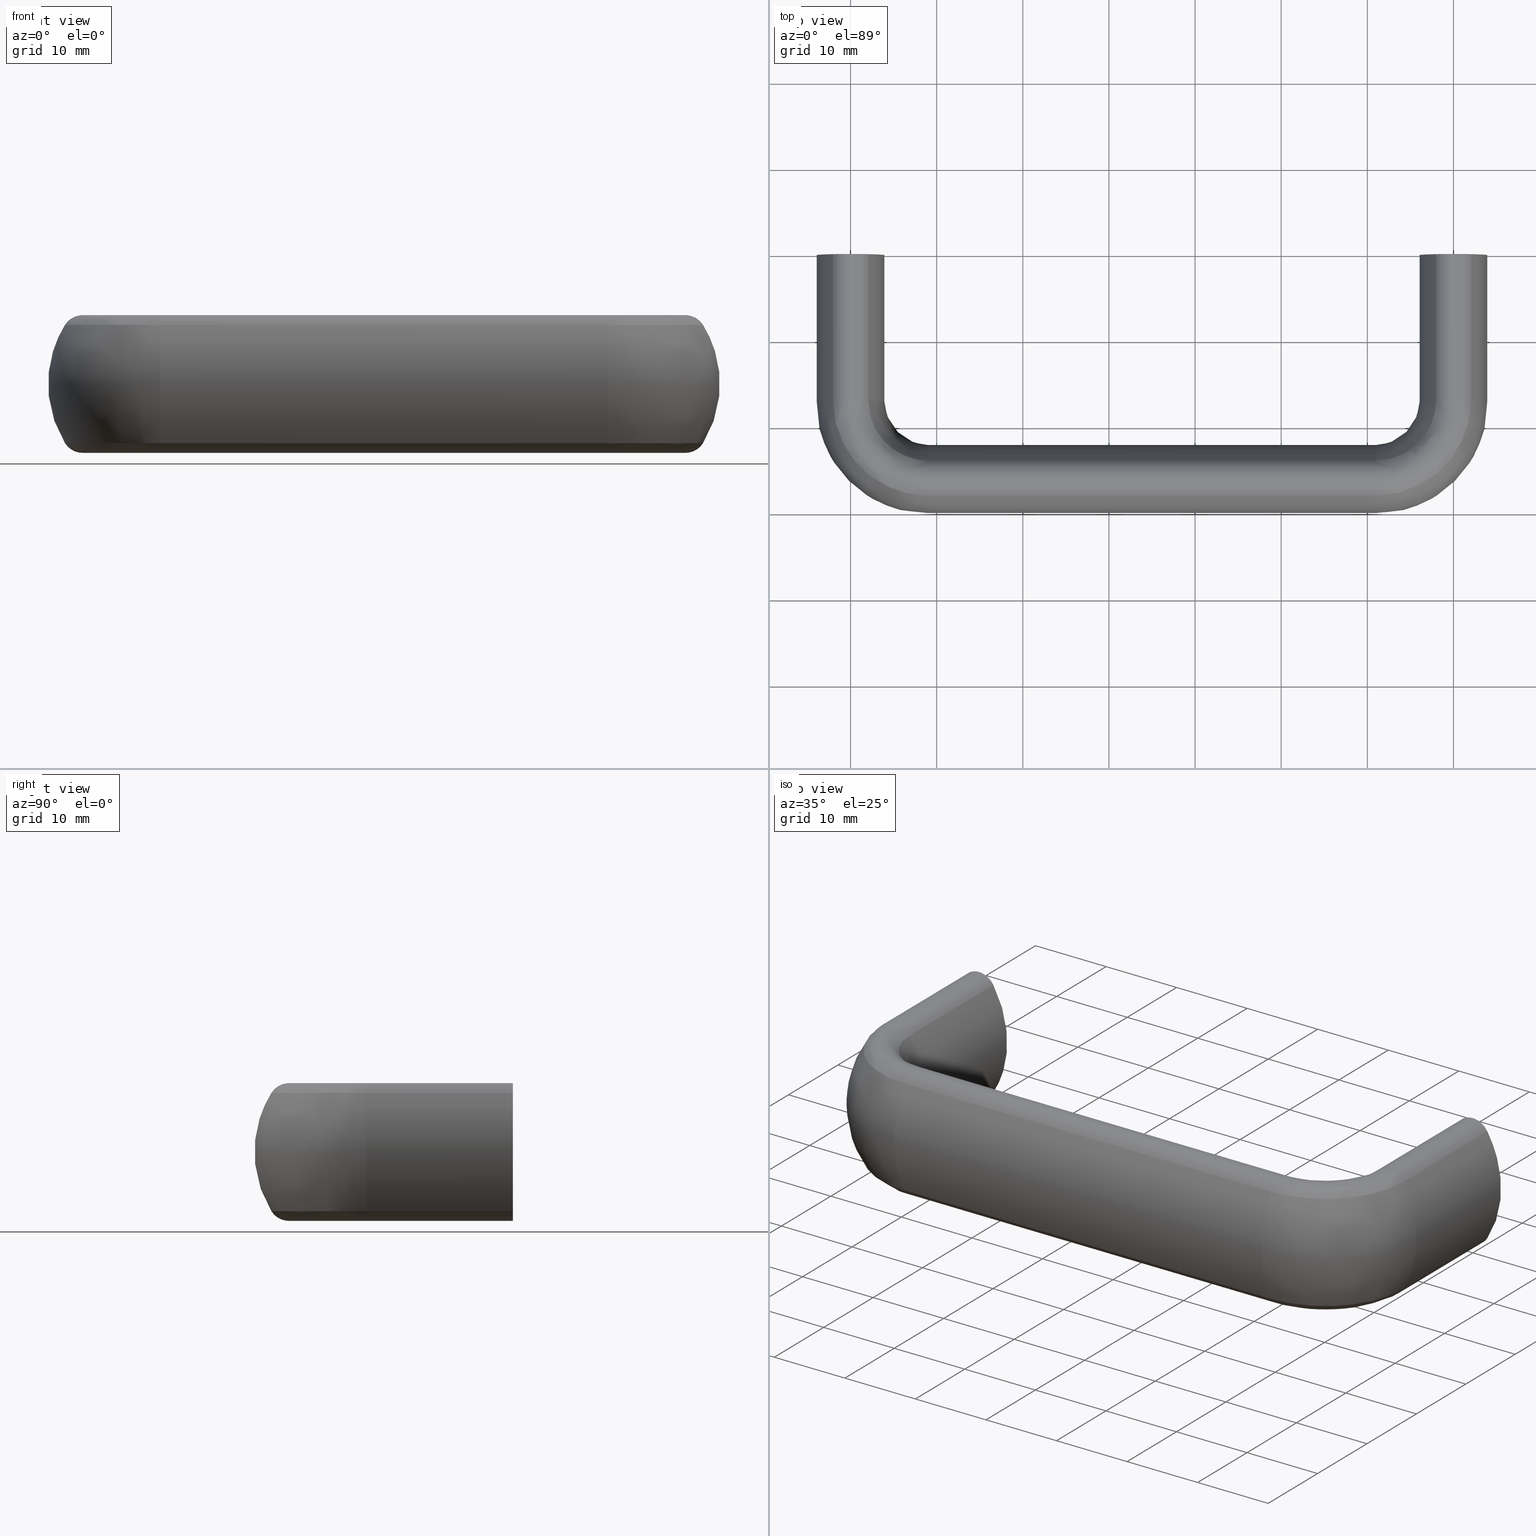
[diagram: canonical four-view strip — front | top / right | iso, engineering-drawing reading convention]
A machine part, canonical four-view strip (front | top / right | iso — engineering-drawing reading convention). The complete STEP part file that produces these views, byte-faithful:
ISO-10303-21;
HEADER;
/****************************************************************
 * Generated by software with PDE/Lib inside                    *
 * PDElib Version 4.4.1-0003, patched  Thursday August 19 11:58 *
 * International Technegroup Inc. (www.iti-oh.com)              *
 ****************************************************************/
FILE_DESCRIPTION((''),'2;1');
FILE_NAME('','2005-10-07T11:47:16',(''),(''),'','CADfix','');
FILE_SCHEMA(('AUTOMOTIVE_DESIGN'));
ENDSEC;
DATA;
#5=APPLICATION_CONTEXT('automotive design');
#6=APPLICATION_PROTOCOL_DEFINITION('Draft International Standard','automotive_design',1998,#5);
#7=PRODUCT_CONTEXT('None',#5,'mechanical');
#8=PRODUCT('pull','','None',(#7));
#9=PRODUCT_RELATED_PRODUCT_CATEGORY('part','description',(#8));
#10=PRODUCT_DEFINITION_FORMATION('None','None',#8);
#11=PRODUCT_DEFINITION_CONTEXT('part definition',#5,'design');
#12=PRODUCT_DEFINITION('None','None',#10,#11);
#18=(NAMED_UNIT(*)PLANE_ANGLE_UNIT()SI_UNIT($,.RADIAN.));
#19=DIMENSIONAL_EXPONENTS(0.0,0.0,0.0,0.0,0.0,0.0,0.0);
#20=PLANE_ANGLE_MEASURE_WITH_UNIT(PLANE_ANGLE_MEASURE(0.017453292500000),#18);
#24=(CONVERSION_BASED_UNIT('DEGREE',#20)NAMED_UNIT(#19)PLANE_ANGLE_UNIT());
#28=(NAMED_UNIT(*)SI_UNIT($,.STERADIAN.)SOLID_ANGLE_UNIT());
#32=(LENGTH_UNIT()NAMED_UNIT(*)SI_UNIT(.MILLI.,.METRE.));
#34=UNCERTAINTY_MEASURE_WITH_UNIT(LENGTH_MEASURE(0.001000000000000),#32,'DISTANCE_ACCURACY_VALUE','');
#36=(GEOMETRIC_REPRESENTATION_CONTEXT(3)GLOBAL_UNCERTAINTY_ASSIGNED_CONTEXT((#34))GLOBAL_UNIT_ASSIGNED_CONTEXT((#24,#28,#32))REPRESENTATION_CONTEXT('None','None'));
#37=AXIS2_PLACEMENT_3D('',#38,#39,#40);
#38=CARTESIAN_POINT('',(0.0,0.0,0.0));
#39=DIRECTION('',(0.0,0.0,1.0));
#40=DIRECTION('',(1.0,0.0,0.0));
#41=ADVANCED_BREP_SHAPE_REPRESENTATION('',(#37,#1455),#36);
#42=PRODUCT_DEFINITION_SHAPE('','',#12);
#43=SHAPE_DEFINITION_REPRESENTATION(#42,#41);
#44=CARTESIAN_POINT('',(-2.492293334332819,-10.250000000000000,0.196147739319614));
#45=CARTESIAN_POINT('',(-2.296145595013206,-10.250000000000002,2.688441073652433));
#46=CARTESIAN_POINT('',(0.196147739319614,-10.250000000000000,2.492293334332819));
#47=CARTESIAN_POINT('',(2.688441073652433,-10.250000000000002,2.296145595013206));
#48=CARTESIAN_POINT('',(2.492293334332819,-10.250000000000000,-0.196147739319614));
#49=CARTESIAN_POINT('',(-2.492293334332819,0.256250000000001,0.196147739319614));
#50=CARTESIAN_POINT('',(-2.296145595013206,0.256250000000001,2.688441073652433));
#51=CARTESIAN_POINT('',(0.196147739319614,0.256250000000001,2.492293334332819));
#52=CARTESIAN_POINT('',(2.688441073652433,0.256250000000001,2.296145595013206));
#53=CARTESIAN_POINT('',(2.492293334332819,0.256250000000001,-0.196147739319614));
#61=(BOUNDED_SURFACE()B_SPLINE_SURFACE(2,1,((#44,#49),(#45,#50),(#46,#51),(#47,#52),(#48,#53)),.UNSPECIFIED.,.F.,.F.,.U.)B_SPLINE_SURFACE_WITH_KNOTS((3,2,3),(2,2),(0.0,4.142135623730949,8.284271247461899),(0.0,10.506250000000000),.UNSPECIFIED.)GEOMETRIC_REPRESENTATION_ITEM()RATIONAL_B_SPLINE_SURFACE(((1.0,1.0),(0.707106781186548,0.707106781186548),(1.0,1.0),(0.707106781186548,0.707106781186548),(1.0,1.0)))REPRESENTATION_ITEM('')SURFACE());
#62=CARTESIAN_POINT('',(0.0,-10.0,2.500000000000000));
#63=VERTEX_POINT('',#62);
#64=CARTESIAN_POINT('',(-2.492293334326589,-10.0,0.196147739398782));
#65=VERTEX_POINT('',#64);
#66=CARTESIAN_POINT('',(0.0,-10.0,2.500000000000000));
#67=CARTESIAN_POINT('',(-2.310976228998244,-9.999999999999998,2.499999999999999));
#68=CARTESIAN_POINT('',(-2.492293334326588,-10.0,0.196147739398782));
#76=(BOUNDED_CURVE()B_SPLINE_CURVE(2,(#66,#67,#68),.UNSPECIFIED.,.F.,.U.)B_SPLINE_CURVE_WITH_KNOTS((3,3),(0.0,0.236331300621876),.UNSPECIFIED.)CURVE()GEOMETRIC_REPRESENTATION_ITEM()RATIONAL_B_SPLINE_CURVE((1.0,0.723120658617956,0.969723356149087))REPRESENTATION_ITEM(''));
#77=EDGE_CURVE('',#63,#65,#76,.T.);
#78=ORIENTED_EDGE('',*,*,#77,.T.);
#79=CARTESIAN_POINT('',(-2.492293334326589,-2.775558E-017,0.196147739398782));
#80=VERTEX_POINT('',#79);
#81=CARTESIAN_POINT('',(-2.492293334326589,-10.0,0.196147739398782));
#82=CARTESIAN_POINT('',(-2.492293334326589,-2.775558E-017,0.196147739398782));
#83=QUASI_UNIFORM_CURVE('',1,(#81,#82),.UNSPECIFIED.,.F.,.U.);
#84=EDGE_CURVE('',#65,#80,#83,.T.);
#85=ORIENTED_EDGE('',*,*,#84,.T.);
#86=CARTESIAN_POINT('',(0.0,0.0,2.500000000000000));
#87=VERTEX_POINT('',#86);
#88=CARTESIAN_POINT('',(0.0,0.0,2.500000000000000));
#89=CARTESIAN_POINT('',(-2.310976228998244,0.0,2.499999999999999));
#90=CARTESIAN_POINT('',(-2.492293334326588,-2.775558E-017,0.196147739398782));
#98=(BOUNDED_CURVE()B_SPLINE_CURVE(2,(#88,#89,#90),.UNSPECIFIED.,.F.,.U.)B_SPLINE_CURVE_WITH_KNOTS((3,3),(0.0,0.236331300621876),.UNSPECIFIED.)CURVE()GEOMETRIC_REPRESENTATION_ITEM()RATIONAL_B_SPLINE_CURVE((1.0,0.723120658617956,0.969723356149087))REPRESENTATION_ITEM(''));
#99=EDGE_CURVE('',#87,#80,#98,.T.);
#100=ORIENTED_EDGE('',*,*,#99,.F.);
#101=CARTESIAN_POINT('',(2.492293334326589,-2.775558E-017,-0.196147739398782));
#102=VERTEX_POINT('',#101);
#103=CARTESIAN_POINT('',(2.492293334326589,-2.775558E-017,-0.196147739398782));
#104=CARTESIAN_POINT('',(2.500000000000000,0.0,-0.098225267598710));
#105=CARTESIAN_POINT('',(2.500000000000000,0.0,0.0));
#106=CARTESIAN_POINT('',(2.500000000000000,0.0,2.500000000000000));
#107=CARTESIAN_POINT('',(0.0,0.0,2.500000000000000));
#115=(BOUNDED_CURVE()B_SPLINE_CURVE(2,(#103,#104,#105,#106,#107),.UNSPECIFIED.,.F.,.U.)B_SPLINE_CURVE_WITH_KNOTS((3,2,3),(0.736331300621876,0.750000000000000,1.0),.UNSPECIFIED.)CURVE()GEOMETRIC_REPRESENTATION_ITEM()RATIONAL_B_SPLINE_CURVE((0.969723356149087,0.983986122568591,1.0,0.707106781186548,1.0))REPRESENTATION_ITEM(''));
#116=EDGE_CURVE('',#102,#87,#115,.T.);
#117=ORIENTED_EDGE('',*,*,#116,.F.);
#118=CARTESIAN_POINT('',(2.492293334326589,-10.0,-0.196147739398782));
#119=VERTEX_POINT('',#118);
#120=CARTESIAN_POINT('',(2.492293334326589,-10.0,-0.196147739398782));
#121=CARTESIAN_POINT('',(2.492293334326589,-2.775558E-017,-0.196147739398782));
#122=QUASI_UNIFORM_CURVE('',1,(#120,#121),.UNSPECIFIED.,.F.,.U.);
#123=EDGE_CURVE('',#119,#102,#122,.T.);
#124=ORIENTED_EDGE('',*,*,#123,.F.);
#125=CARTESIAN_POINT('',(2.492293334326589,-10.0,-0.196147739398782));
#126=CARTESIAN_POINT('',(2.500000000000000,-10.000000000000002,-0.098225267598710));
#127=CARTESIAN_POINT('',(2.500000000000000,-10.0,0.0));
#128=CARTESIAN_POINT('',(2.500000000000000,-10.000000000000002,2.500000000000000));
#129=CARTESIAN_POINT('',(0.0,-10.0,2.500000000000000));
#137=(BOUNDED_CURVE()B_SPLINE_CURVE(2,(#125,#126,#127,#128,#129),.UNSPECIFIED.,.F.,.U.)B_SPLINE_CURVE_WITH_KNOTS((3,2,3),(0.736331300621876,0.750000000000000,1.0),.UNSPECIFIED.)CURVE()GEOMETRIC_REPRESENTATION_ITEM()RATIONAL_B_SPLINE_CURVE((0.969723356149087,0.983986122568591,1.0,0.707106781186548,1.0))REPRESENTATION_ITEM(''));
#138=EDGE_CURVE('',#119,#63,#137,.T.);
#139=ORIENTED_EDGE('',*,*,#138,.T.);
#140=EDGE_LOOP('',(#78,#85,#100,#117,#124,#139));
#141=FACE_OUTER_BOUND('',#140,.T.);
#142=ADVANCED_FACE('',(#141),#61,.F.);
#143=CARTESIAN_POINT('',(2.492293334332819,-10.250000000000000,-0.196147739319614));
#144=CARTESIAN_POINT('',(2.296145595013206,-10.250000000000002,-2.688441073652433));
#145=CARTESIAN_POINT('',(-0.196147739319614,-10.250000000000000,-2.492293334332819));
#146=CARTESIAN_POINT('',(-2.688441073652433,-10.250000000000002,-2.296145595013206));
#147=CARTESIAN_POINT('',(-2.492293334332819,-10.250000000000000,0.196147739319614));
#148=CARTESIAN_POINT('',(2.492293334332819,0.256250000000001,-0.196147739319614));
#149=CARTESIAN_POINT('',(2.296145595013206,0.256250000000001,-2.688441073652433));
#150=CARTESIAN_POINT('',(-0.196147739319614,0.256250000000001,-2.492293334332819));
#151=CARTESIAN_POINT('',(-2.688441073652433,0.256250000000001,-2.296145595013206));
#152=CARTESIAN_POINT('',(-2.492293334332819,0.256250000000001,0.196147739319614));
#160=(BOUNDED_SURFACE()B_SPLINE_SURFACE(2,1,((#143,#148),(#144,#149),(#145,#150),(#146,#151),(#147,#152)),.UNSPECIFIED.,.F.,.F.,.U.)B_SPLINE_SURFACE_WITH_KNOTS((3,2,3),(2,2),(0.0,4.142135623730949,8.284271247461899),(0.0,10.506250000000000),.UNSPECIFIED.)GEOMETRIC_REPRESENTATION_ITEM()RATIONAL_B_SPLINE_SURFACE(((1.0,1.0),(0.707106781186548,0.707106781186548),(1.0,1.0),(0.707106781186548,0.707106781186548),(1.0,1.0)))REPRESENTATION_ITEM('')SURFACE());
#161=CARTESIAN_POINT('',(0.0,-10.0,-2.500000000000000));
#162=VERTEX_POINT('',#161);
#163=CARTESIAN_POINT('',(-2.492293334326589,-10.0,0.196147739398782));
#164=CARTESIAN_POINT('',(-2.500000000000000,-10.000000000000002,0.098225267598710));
#165=CARTESIAN_POINT('',(-2.500000000000000,-10.0,0.0));
#166=CARTESIAN_POINT('',(-2.500000000000000,-10.000000000000002,-2.500000000000000));
#167=CARTESIAN_POINT('',(0.0,-10.0,-2.500000000000000));
#175=(BOUNDED_CURVE()B_SPLINE_CURVE(2,(#163,#164,#165,#166,#167),.UNSPECIFIED.,.F.,.U.)B_SPLINE_CURVE_WITH_KNOTS((3,2,3),(0.236331300621876,0.250000000000000,0.500000000000000),.UNSPECIFIED.)CURVE()GEOMETRIC_REPRESENTATION_ITEM()RATIONAL_B_SPLINE_CURVE((0.969723356149087,0.983986122568591,1.0,0.707106781186548,1.0))REPRESENTATION_ITEM(''));
#176=EDGE_CURVE('',#65,#162,#175,.T.);
#177=ORIENTED_EDGE('',*,*,#176,.T.);
#178=CARTESIAN_POINT('',(0.0,-10.0,-2.500000000000000));
#179=CARTESIAN_POINT('',(2.310976228998257,-10.000000000000002,-2.500000000000000));
#180=CARTESIAN_POINT('',(2.492293334326589,-10.0,-0.196147739398782));
#188=(BOUNDED_CURVE()B_SPLINE_CURVE(2,(#178,#179,#180),.UNSPECIFIED.,.F.,.U.)B_SPLINE_CURVE_WITH_KNOTS((3,3),(0.500000000000000,0.736331300621877),.UNSPECIFIED.)CURVE()GEOMETRIC_REPRESENTATION_ITEM()RATIONAL_B_SPLINE_CURVE((1.0,0.723120658617955,0.969723356149089))REPRESENTATION_ITEM(''));
#189=EDGE_CURVE('',#162,#119,#188,.T.);
#190=ORIENTED_EDGE('',*,*,#189,.T.);
#191=ORIENTED_EDGE('',*,*,#123,.T.);
#192=CARTESIAN_POINT('',(0.0,0.0,-2.500000000000000));
#193=VERTEX_POINT('',#192);
#194=CARTESIAN_POINT('',(0.0,0.0,-2.500000000000000));
#195=CARTESIAN_POINT('',(2.310976228998257,0.0,-2.500000000000000));
#196=CARTESIAN_POINT('',(2.492293334326589,-2.775558E-017,-0.196147739398782));
#204=(BOUNDED_CURVE()B_SPLINE_CURVE(2,(#194,#195,#196),.UNSPECIFIED.,.F.,.U.)B_SPLINE_CURVE_WITH_KNOTS((3,3),(0.500000000000000,0.736331300621877),.UNSPECIFIED.)CURVE()GEOMETRIC_REPRESENTATION_ITEM()RATIONAL_B_SPLINE_CURVE((1.0,0.723120658617955,0.969723356149089))REPRESENTATION_ITEM(''));
#205=EDGE_CURVE('',#193,#102,#204,.T.);
#206=ORIENTED_EDGE('',*,*,#205,.F.);
#207=CARTESIAN_POINT('',(-2.492293334326589,-2.775558E-017,0.196147739398782));
#208=CARTESIAN_POINT('',(-2.500000000000000,0.0,0.098225267598710));
#209=CARTESIAN_POINT('',(-2.500000000000000,0.0,0.0));
#210=CARTESIAN_POINT('',(-2.500000000000000,0.0,-2.500000000000000));
#211=CARTESIAN_POINT('',(0.0,0.0,-2.500000000000000));
#219=(BOUNDED_CURVE()B_SPLINE_CURVE(2,(#207,#208,#209,#210,#211),.UNSPECIFIED.,.F.,.U.)B_SPLINE_CURVE_WITH_KNOTS((3,2,3),(0.236331300621876,0.250000000000000,0.500000000000000),.UNSPECIFIED.)CURVE()GEOMETRIC_REPRESENTATION_ITEM()RATIONAL_B_SPLINE_CURVE((0.969723356149087,0.983986122568591,1.0,0.707106781186548,1.0))REPRESENTATION_ITEM(''));
#220=EDGE_CURVE('',#80,#193,#219,.T.);
#221=ORIENTED_EDGE('',*,*,#220,.F.);
#222=ORIENTED_EDGE('',*,*,#84,.F.);
#223=EDGE_LOOP('',(#177,#190,#191,#206,#221,#222));
#224=FACE_OUTER_BOUND('',#223,.T.);
#225=ADVANCED_FACE('',(#224),#160,.F.);
#226=CARTESIAN_POINT('',(67.507706665667186,-10.250000000000000,0.196147739319614));
#227=CARTESIAN_POINT('',(67.703854404986799,-10.250000000000002,2.688441073652433));
#228=CARTESIAN_POINT('',(70.196147739319613,-10.250000000000000,2.492293334332819));
#229=CARTESIAN_POINT('',(72.688441073652427,-10.250000000000002,2.296145595013206));
#230=CARTESIAN_POINT('',(72.492293334332814,-10.250000000000000,-0.196147739319614));
#231=CARTESIAN_POINT('',(67.507706665667186,0.256250000000001,0.196147739319614));
#232=CARTESIAN_POINT('',(67.703854404986799,0.256250000000001,2.688441073652433));
#233=CARTESIAN_POINT('',(70.196147739319613,0.256250000000001,2.492293334332819));
#234=CARTESIAN_POINT('',(72.688441073652427,0.256250000000001,2.296145595013206));
#235=CARTESIAN_POINT('',(72.492293334332814,0.256250000000001,-0.196147739319614));
#243=(BOUNDED_SURFACE()B_SPLINE_SURFACE(2,1,((#226,#231),(#227,#232),(#228,#233),(#229,#234),(#230,#235)),.UNSPECIFIED.,.F.,.F.,.U.)B_SPLINE_SURFACE_WITH_KNOTS((3,2,3),(2,2),(0.0,4.142135623730946,8.284271247461891),(0.0,10.506250000000000),.UNSPECIFIED.)GEOMETRIC_REPRESENTATION_ITEM()RATIONAL_B_SPLINE_SURFACE(((1.0,1.0),(0.707106781186548,0.707106781186548),(1.0,1.0),(0.707106781186548,0.707106781186548),(1.0,1.0)))REPRESENTATION_ITEM('')SURFACE());
#244=CARTESIAN_POINT('',(70.0,-10.0,2.500000000000000));
#245=VERTEX_POINT('',#244);
#246=CARTESIAN_POINT('',(67.507706665673410,-10.0,0.196147739398782));
#247=VERTEX_POINT('',#246);
#248=CARTESIAN_POINT('',(70.0,-10.0,2.500000000000000));
#249=CARTESIAN_POINT('',(67.689023771001757,-9.999999999999998,2.499999999999999));
#250=CARTESIAN_POINT('',(67.507706665673410,-10.0,0.196147739398782));
#258=(BOUNDED_CURVE()B_SPLINE_CURVE(2,(#248,#249,#250),.UNSPECIFIED.,.F.,.U.)B_SPLINE_CURVE_WITH_KNOTS((3,3),(0.0,0.236331300621876),.UNSPECIFIED.)CURVE()GEOMETRIC_REPRESENTATION_ITEM()RATIONAL_B_SPLINE_CURVE((1.0,0.723120658617956,0.969723356149087))REPRESENTATION_ITEM(''));
#259=EDGE_CURVE('',#245,#247,#258,.T.);
#260=ORIENTED_EDGE('',*,*,#259,.T.);
#261=CARTESIAN_POINT('',(67.507706665673425,-2.775558E-017,0.196147739398783));
#262=VERTEX_POINT('',#261);
#263=CARTESIAN_POINT('',(67.507706665673410,-10.0,0.196147739398782));
#264=CARTESIAN_POINT('',(67.507706665673425,-2.775558E-017,0.196147739398783));
#265=QUASI_UNIFORM_CURVE('',1,(#263,#264),.UNSPECIFIED.,.F.,.U.);
#266=EDGE_CURVE('',#247,#262,#265,.T.);
#267=ORIENTED_EDGE('',*,*,#266,.T.);
#268=CARTESIAN_POINT('',(70.0,0.0,2.500000000000000));
#269=VERTEX_POINT('',#268);
#270=CARTESIAN_POINT('',(70.0,0.0,2.500000000000000));
#271=CARTESIAN_POINT('',(67.689023771001757,0.0,2.500000000000000));
#272=CARTESIAN_POINT('',(67.507706665673425,-2.775558E-017,0.196147739398783));
#280=(BOUNDED_CURVE()B_SPLINE_CURVE(2,(#270,#271,#272),.UNSPECIFIED.,.F.,.U.)B_SPLINE_CURVE_WITH_KNOTS((3,3),(0.0,0.236331300621876),.UNSPECIFIED.)CURVE()GEOMETRIC_REPRESENTATION_ITEM()RATIONAL_B_SPLINE_CURVE((1.0,0.723120658617956,0.969723356149087))REPRESENTATION_ITEM(''));
#281=EDGE_CURVE('',#269,#262,#280,.T.);
#282=ORIENTED_EDGE('',*,*,#281,.F.);
#283=CARTESIAN_POINT('',(72.492293334326590,-2.775558E-017,-0.196147739398783));
#284=VERTEX_POINT('',#283);
#285=CARTESIAN_POINT('',(72.492293334326590,-2.775558E-017,-0.196147739398783));
#286=CARTESIAN_POINT('',(72.500000000000014,0.0,-0.098225267598711));
#287=CARTESIAN_POINT('',(72.500000000000014,0.0,0.0));
#288=CARTESIAN_POINT('',(72.500000000000014,0.0,2.500000000000000));
#289=CARTESIAN_POINT('',(70.0,0.0,2.500000000000000));
#297=(BOUNDED_CURVE()B_SPLINE_CURVE(2,(#285,#286,#287,#288,#289),.UNSPECIFIED.,.F.,.U.)B_SPLINE_CURVE_WITH_KNOTS((3,2,3),(0.736331300621876,0.750000000000000,1.0),.UNSPECIFIED.)CURVE()GEOMETRIC_REPRESENTATION_ITEM()RATIONAL_B_SPLINE_CURVE((0.969723356149087,0.983986122568591,1.0,0.707106781186548,1.0))REPRESENTATION_ITEM(''));
#298=EDGE_CURVE('',#284,#269,#297,.T.);
#299=ORIENTED_EDGE('',*,*,#298,.F.);
#300=CARTESIAN_POINT('',(72.492293334326604,-10.0,-0.196147739398784));
#301=VERTEX_POINT('',#300);
#302=CARTESIAN_POINT('',(72.492293334326604,-10.0,-0.196147739398784));
#303=CARTESIAN_POINT('',(72.492293334326590,-2.775558E-017,-0.196147739398783));
#304=QUASI_UNIFORM_CURVE('',1,(#302,#303),.UNSPECIFIED.,.F.,.U.);
#305=EDGE_CURVE('',#301,#284,#304,.T.);
#306=ORIENTED_EDGE('',*,*,#305,.F.);
#307=CARTESIAN_POINT('',(72.492293334326604,-10.000000000000002,-0.196147739398784));
#308=CARTESIAN_POINT('',(72.500000000000000,-10.0,-0.098225267598712));
#309=CARTESIAN_POINT('',(72.500000000000014,-10.0,0.0));
#310=CARTESIAN_POINT('',(72.500000000000014,-10.000000000000002,2.500000000000000));
#311=CARTESIAN_POINT('',(70.0,-10.0,2.500000000000000));
#319=(BOUNDED_CURVE()B_SPLINE_CURVE(2,(#307,#308,#309,#310,#311),.UNSPECIFIED.,.F.,.U.)B_SPLINE_CURVE_WITH_KNOTS((3,2,3),(0.736331300621876,0.750000000000000,1.0),.UNSPECIFIED.)CURVE()GEOMETRIC_REPRESENTATION_ITEM()RATIONAL_B_SPLINE_CURVE((0.969723356149087,0.983986122568591,1.0,0.707106781186548,1.0))REPRESENTATION_ITEM(''));
#320=EDGE_CURVE('',#301,#245,#319,.T.);
#321=ORIENTED_EDGE('',*,*,#320,.T.);
#322=EDGE_LOOP('',(#260,#267,#282,#299,#306,#321));
#323=FACE_OUTER_BOUND('',#322,.T.);
#324=ADVANCED_FACE('',(#323),#243,.F.);
#325=CARTESIAN_POINT('',(72.492293334332814,-10.250000000000000,-0.196147739319614));
#326=CARTESIAN_POINT('',(72.296145595013215,-10.250000000000002,-2.688441073652433));
#327=CARTESIAN_POINT('',(69.803852260680387,-10.250000000000000,-2.492293334332819));
#328=CARTESIAN_POINT('',(67.311558926347573,-10.250000000000002,-2.296145595013206));
#329=CARTESIAN_POINT('',(67.507706665667186,-10.250000000000000,0.196147739319614));
#330=CARTESIAN_POINT('',(72.492293334332814,0.256250000000001,-0.196147739319614));
#331=CARTESIAN_POINT('',(72.296145595013215,0.256250000000001,-2.688441073652433));
#332=CARTESIAN_POINT('',(69.803852260680387,0.256250000000001,-2.492293334332819));
#333=CARTESIAN_POINT('',(67.311558926347573,0.256250000000001,-2.296145595013206));
#334=CARTESIAN_POINT('',(67.507706665667186,0.256250000000001,0.196147739319614));
#342=(BOUNDED_SURFACE()B_SPLINE_SURFACE(2,1,((#325,#330),(#326,#331),(#327,#332),(#328,#333),(#329,#334)),.UNSPECIFIED.,.F.,.F.,.U.)B_SPLINE_SURFACE_WITH_KNOTS((3,2,3),(2,2),(0.0,4.142135623730946,8.284271247461891),(0.0,10.506250000000000),.UNSPECIFIED.)GEOMETRIC_REPRESENTATION_ITEM()RATIONAL_B_SPLINE_SURFACE(((1.0,1.0),(0.707106781186548,0.707106781186548),(1.0,1.0),(0.707106781186548,0.707106781186548),(1.0,1.0)))REPRESENTATION_ITEM('')SURFACE());
#343=CARTESIAN_POINT('',(70.0,-10.0,-2.500000000000000));
#344=VERTEX_POINT('',#343);
#345=CARTESIAN_POINT('',(67.507706665673410,-10.0,0.196147739398782));
#346=CARTESIAN_POINT('',(67.500000000000000,-10.0,0.098225267598711));
#347=CARTESIAN_POINT('',(67.500000000000000,-10.0,0.0));
#348=CARTESIAN_POINT('',(67.500000000000000,-10.000000000000002,-2.500000000000000));
#349=CARTESIAN_POINT('',(70.0,-10.0,-2.500000000000000));
#357=(BOUNDED_CURVE()B_SPLINE_CURVE(2,(#345,#346,#347,#348,#349),.UNSPECIFIED.,.F.,.U.)B_SPLINE_CURVE_WITH_KNOTS((3,2,3),(0.236331300621876,0.250000000000000,0.500000000000000),.UNSPECIFIED.)CURVE()GEOMETRIC_REPRESENTATION_ITEM()RATIONAL_B_SPLINE_CURVE((0.969723356149087,0.983986122568591,1.0,0.707106781186548,1.0))REPRESENTATION_ITEM(''));
#358=EDGE_CURVE('',#247,#344,#357,.T.);
#359=ORIENTED_EDGE('',*,*,#358,.T.);
#360=CARTESIAN_POINT('',(70.0,-10.0,-2.500000000000000));
#361=CARTESIAN_POINT('',(72.310976228998243,-9.999999999999998,-2.500000000000000));
#362=CARTESIAN_POINT('',(72.492293334326604,-10.000000000000002,-0.196147739398784));
#370=(BOUNDED_CURVE()B_SPLINE_CURVE(2,(#360,#361,#362),.UNSPECIFIED.,.F.,.U.)B_SPLINE_CURVE_WITH_KNOTS((3,3),(0.500000000000000,0.736331300621875),.UNSPECIFIED.)CURVE()GEOMETRIC_REPRESENTATION_ITEM()RATIONAL_B_SPLINE_CURVE((1.0,0.723120658617958,0.969723356149084))REPRESENTATION_ITEM(''));
#371=EDGE_CURVE('',#344,#301,#370,.T.);
#372=ORIENTED_EDGE('',*,*,#371,.T.);
#373=ORIENTED_EDGE('',*,*,#305,.T.);
#374=CARTESIAN_POINT('',(70.0,0.0,-2.500000000000000));
#375=VERTEX_POINT('',#374);
#376=CARTESIAN_POINT('',(70.0,0.0,-2.500000000000000));
#377=CARTESIAN_POINT('',(72.310976228998271,0.0,-2.500000000000000));
#378=CARTESIAN_POINT('',(72.492293334326590,-2.775558E-017,-0.196147739398783));
#386=(BOUNDED_CURVE()B_SPLINE_CURVE(2,(#376,#377,#378),.UNSPECIFIED.,.F.,.U.)B_SPLINE_CURVE_WITH_KNOTS((3,3),(0.500000000000000,0.736331300621877),.UNSPECIFIED.)CURVE()GEOMETRIC_REPRESENTATION_ITEM()RATIONAL_B_SPLINE_CURVE((1.0,0.723120658617955,0.969723356149089))REPRESENTATION_ITEM(''));
#387=EDGE_CURVE('',#375,#284,#386,.T.);
#388=ORIENTED_EDGE('',*,*,#387,.F.);
#389=CARTESIAN_POINT('',(67.507706665673425,-2.775558E-017,0.196147739398783));
#390=CARTESIAN_POINT('',(67.500000000000000,0.0,0.098225267598711));
#391=CARTESIAN_POINT('',(67.500000000000000,0.0,0.0));
#392=CARTESIAN_POINT('',(67.500000000000000,0.0,-2.500000000000000));
#393=CARTESIAN_POINT('',(70.0,0.0,-2.500000000000000));
#401=(BOUNDED_CURVE()B_SPLINE_CURVE(2,(#389,#390,#391,#392,#393),.UNSPECIFIED.,.F.,.U.)B_SPLINE_CURVE_WITH_KNOTS((3,2,3),(0.236331300621876,0.250000000000000,0.500000000000000),.UNSPECIFIED.)CURVE()GEOMETRIC_REPRESENTATION_ITEM()RATIONAL_B_SPLINE_CURVE((0.969723356149087,0.983986122568591,1.0,0.707106781186548,1.0))REPRESENTATION_ITEM(''));
#402=EDGE_CURVE('',#262,#375,#401,.T.);
#403=ORIENTED_EDGE('',*,*,#402,.F.);
#404=ORIENTED_EDGE('',*,*,#266,.F.);
#405=EDGE_LOOP('',(#359,#372,#373,#388,#403,#404));
#406=FACE_OUTER_BOUND('',#405,.T.);
#407=ADVANCED_FACE('',(#406),#342,.F.);
#408=CARTESIAN_POINT('',(-2.748986881816789,-10.0,2.749749990309030));
#409=CARTESIAN_POINT('',(2.748987015927241,-10.0,2.749749990309030));
#410=CARTESIAN_POINT('',(-2.748986881816789,-10.0,-2.749750124419481));
#411=CARTESIAN_POINT('',(2.748987015927241,-10.0,-2.749750124419481));
#412=B_SPLINE_SURFACE_WITH_KNOTS('',1,1,((#408,#410),(#409,#411)),.UNSPECIFIED.,.F.,.F.,.U.,(2,2),(2,2),(0.0,5.497973897744030),(0.0,5.499500114728511),.UNSPECIFIED.);
#413=ORIENTED_EDGE('',*,*,#138,.F.);
#414=ORIENTED_EDGE('',*,*,#189,.F.);
#415=ORIENTED_EDGE('',*,*,#176,.F.);
#416=ORIENTED_EDGE('',*,*,#77,.F.);
#417=EDGE_LOOP('',(#413,#414,#415,#416));
#418=FACE_OUTER_BOUND('',#417,.T.);
#419=ADVANCED_FACE('',(#418),#412,.T.);
#420=CARTESIAN_POINT('',(67.251013623274460,-10.0,2.749749990309030));
#421=CARTESIAN_POINT('',(72.748986242615103,-10.0,2.749749990309030));
#422=CARTESIAN_POINT('',(67.251013623274460,-10.0,-2.749750124419481));
#423=CARTESIAN_POINT('',(72.748986242615103,-10.0,-2.749750124419481));
#424=B_SPLINE_SURFACE_WITH_KNOTS('',1,1,((#420,#422),(#421,#423)),.UNSPECIFIED.,.F.,.F.,.U.,(2,2),(2,2),(0.0,5.497972619340644),(0.0,5.499500114728511),.UNSPECIFIED.);
#425=ORIENTED_EDGE('',*,*,#320,.F.);
#426=ORIENTED_EDGE('',*,*,#371,.F.);
#427=ORIENTED_EDGE('',*,*,#358,.F.);
#428=ORIENTED_EDGE('',*,*,#259,.F.);
#429=EDGE_LOOP('',(#425,#426,#427,#428));
#430=FACE_OUTER_BOUND('',#429,.T.);
#431=ADVANCED_FACE('',(#430),#424,.T.);
#432=CARTESIAN_POINT('',(67.908897532796402,-17.425000000000001,-6.777832955751788));
#433=CARTESIAN_POINT('',(67.908897532796402,0.435625000000009,-6.777832955751788));
#434=CARTESIAN_POINT('',(70.033764432705112,-17.425000000000004,-10.550281667752941));
#435=CARTESIAN_POINT('',(70.033764432705112,0.435625000000009,-10.550281667752941));
#436=CARTESIAN_POINT('',(72.106974476572361,-17.425000000000001,-6.749199092878392));
#437=CARTESIAN_POINT('',(72.106974476572361,0.435625000000009,-6.749199092878392));
#445=(BOUNDED_SURFACE()B_SPLINE_SURFACE(1,2,((#432,#434,#436),(#433,#435,#437)),.UNSPECIFIED.,.F.,.F.,.U.)B_SPLINE_SURFACE_WITH_KNOTS((2,2),(3,3),(0.0,17.860625000000010),(0.0,5.654832157637261),.UNSPECIFIED.)GEOMETRIC_REPRESENTATION_ITEM()RATIONAL_B_SPLINE_SURFACE(((1.0,0.484809620246338,1.0),(1.0,0.484809620246338,1.0)))REPRESENTATION_ITEM('')SURFACE());
#446=CARTESIAN_POINT('',(67.962264150943412,6.938894E-015,-6.867924528301880));
#447=VERTEX_POINT('',#446);
#448=CARTESIAN_POINT('',(72.037735849056602,6.938894E-015,-6.867924528301869));
#449=VERTEX_POINT('',#448);
#450=CARTESIAN_POINT('',(67.962264150943412,6.938894E-015,-6.867924528301884));
#451=CARTESIAN_POINT('',(68.666666666666671,6.938894E-015,-8.0));
#452=CARTESIAN_POINT('',(70.0,6.938894E-015,-8.0));
#453=CARTESIAN_POINT('',(71.333333333333343,6.938894E-015,-8.0));
#454=CARTESIAN_POINT('',(72.037735849056617,6.938894E-015,-6.867924528301876));
#462=(BOUNDED_CURVE()B_SPLINE_CURVE(2,(#450,#451,#452,#453,#454),.UNSPECIFIED.,.F.,.U.)B_SPLINE_CURVE_WITH_KNOTS((3,2,3),(0.0,0.500000000000000,1.0),.UNSPECIFIED.)CURVE()GEOMETRIC_REPRESENTATION_ITEM()RATIONAL_B_SPLINE_CURVE((1.0,0.874157276121537,1.0,0.874157276121537,1.0))REPRESENTATION_ITEM(''));
#463=EDGE_CURVE('',#447,#449,#462,.T.);
#464=ORIENTED_EDGE('',*,*,#463,.T.);
#465=CARTESIAN_POINT('',(72.037735849056602,-17.0,-6.867924528301869));
#466=VERTEX_POINT('',#465);
#467=CARTESIAN_POINT('',(72.037735849056602,-17.0,-6.867924528301869));
#468=CARTESIAN_POINT('',(72.037735849056602,6.938894E-015,-6.867924528301869));
#469=QUASI_UNIFORM_CURVE('',1,(#467,#468),.UNSPECIFIED.,.F.,.U.);
#470=EDGE_CURVE('',#466,#449,#469,.T.);
#471=ORIENTED_EDGE('',*,*,#470,.F.);
#472=CARTESIAN_POINT('',(67.962264150943412,-17.0,-6.867924528301880));
#473=VERTEX_POINT('',#472);
#474=CARTESIAN_POINT('',(67.962264150943412,-17.0,-6.867924528301884));
#475=CARTESIAN_POINT('',(68.666666666666671,-17.000000000000004,-8.0));
#476=CARTESIAN_POINT('',(70.0,-17.0,-8.0));
#477=CARTESIAN_POINT('',(71.333333333333343,-17.000000000000004,-8.0));
#478=CARTESIAN_POINT('',(72.037735849056617,-17.0,-6.867924528301876));
#486=(BOUNDED_CURVE()B_SPLINE_CURVE(2,(#474,#475,#476,#477,#478),.UNSPECIFIED.,.F.,.U.)B_SPLINE_CURVE_WITH_KNOTS((3,2,3),(0.0,0.500000000000000,1.0),.UNSPECIFIED.)CURVE()GEOMETRIC_REPRESENTATION_ITEM()RATIONAL_B_SPLINE_CURVE((1.0,0.874157276121537,1.0,0.874157276121537,1.0))REPRESENTATION_ITEM(''));
#487=EDGE_CURVE('',#473,#466,#486,.T.);
#488=ORIENTED_EDGE('',*,*,#487,.F.);
#489=CARTESIAN_POINT('',(67.962264150943412,-17.0,-6.867924528301880));
#490=CARTESIAN_POINT('',(67.962264150943412,6.938894E-015,-6.867924528301880));
#491=QUASI_UNIFORM_CURVE('',1,(#489,#490),.UNSPECIFIED.,.F.,.U.);
#492=EDGE_CURVE('',#473,#447,#491,.T.);
#493=ORIENTED_EDGE('',*,*,#492,.T.);
#494=EDGE_LOOP('',(#464,#471,#488,#493));
#495=FACE_OUTER_BOUND('',#494,.T.);
#496=ADVANCED_FACE('',(#495),#445,.T.);
#497=CARTESIAN_POINT('',(68.145827812705008,-17.425000000000001,7.154505302853010));
#498=CARTESIAN_POINT('',(68.145827812705008,0.435625000000008,7.154505302853010));
#499=CARTESIAN_POINT('',(63.320053052136359,-17.424999999999997,-0.166726280751657));
#500=CARTESIAN_POINT('',(63.320053052136359,0.435625000000008,-0.166726280751657));
#501=CARTESIAN_POINT('',(68.300413728349923,-17.425000000000001,-7.383688347669938));
#502=CARTESIAN_POINT('',(68.300413728349923,0.435625000000008,-7.383688347669938));
#510=(BOUNDED_SURFACE()B_SPLINE_SURFACE(1,2,((#497,#499,#501),(#498,#500,#502)),.UNSPECIFIED.,.F.,.F.,.U.)B_SPLINE_SURFACE_WITH_KNOTS((2,2),(3,3),(0.0,17.860625000000010),(0.0,15.897995435850330),.UNSPECIFIED.)GEOMETRIC_REPRESENTATION_ITEM()RATIONAL_B_SPLINE_SURFACE(((1.0,0.829037572555042,1.0),(1.0,0.829037572555042,1.0)))REPRESENTATION_ITEM('')SURFACE());
#511=ORIENTED_EDGE('',*,*,#492,.F.);
#512=CARTESIAN_POINT('',(67.962264150943412,-17.0,6.867924528301880));
#513=VERTEX_POINT('',#512);
#514=CARTESIAN_POINT('',(67.962264150943412,-17.0,6.867924528301891));
#515=CARTESIAN_POINT('',(63.688888888888897,-16.999999999999996,3.469447E-015));
#516=CARTESIAN_POINT('',(67.962264150943398,-17.0,-6.867924528301887));
#524=(BOUNDED_CURVE()B_SPLINE_CURVE(2,(#514,#515,#516),.UNSPECIFIED.,.F.,.U.)CURVE()GEOMETRIC_REPRESENTATION_ITEM()QUASI_UNIFORM_CURVE()RATIONAL_B_SPLINE_CURVE((1.0,0.849056603773585,1.0))REPRESENTATION_ITEM(''));
#525=EDGE_CURVE('',#513,#473,#524,.T.);
#526=ORIENTED_EDGE('',*,*,#525,.F.);
#527=CARTESIAN_POINT('',(67.962264150943412,6.387821E-015,6.867924528301880));
#528=VERTEX_POINT('',#527);
#529=CARTESIAN_POINT('',(67.962264150943412,-17.0,6.867924528301880));
#530=CARTESIAN_POINT('',(67.962264150943412,6.387821E-015,6.867924528301880));
#531=QUASI_UNIFORM_CURVE('',1,(#529,#530),.UNSPECIFIED.,.F.,.U.);
#532=EDGE_CURVE('',#513,#528,#531,.T.);
#533=ORIENTED_EDGE('',*,*,#532,.T.);
#534=CARTESIAN_POINT('',(67.962264150943412,5.836748E-015,6.867924528301891));
#535=CARTESIAN_POINT('',(63.688888888888897,5.836748E-015,3.469447E-015));
#536=CARTESIAN_POINT('',(67.962264150943398,5.836748E-015,-6.867924528301887));
#544=(BOUNDED_CURVE()B_SPLINE_CURVE(2,(#534,#535,#536),.UNSPECIFIED.,.F.,.U.)CURVE()GEOMETRIC_REPRESENTATION_ITEM()QUASI_UNIFORM_CURVE()RATIONAL_B_SPLINE_CURVE((1.0,0.849056603773585,1.0))REPRESENTATION_ITEM(''));
#545=EDGE_CURVE('',#528,#447,#544,.T.);
#546=ORIENTED_EDGE('',*,*,#545,.T.);
#547=EDGE_LOOP('',(#511,#526,#533,#546));
#548=FACE_OUTER_BOUND('',#547,.T.);
#549=ADVANCED_FACE('',(#548),#510,.T.);
#550=CARTESIAN_POINT('',(72.070227962710362,-17.425000000000001,6.814148336247297));
#551=CARTESIAN_POINT('',(72.070227962710362,0.435625000000009,6.814148336247297));
#552=CARTESIAN_POINT('',(69.924228043561996,-17.425000000000001,10.473263872596576));
#553=CARTESIAN_POINT('',(69.924228043561996,0.435625000000009,10.473263872596576));
#554=CARTESIAN_POINT('',(67.893025523427639,-17.425000000000001,6.749199092878428));
#555=CARTESIAN_POINT('',(67.893025523427639,0.435625000000009,6.749199092878428));
#563=(BOUNDED_SURFACE()B_SPLINE_SURFACE(1,2,((#550,#552,#554),(#551,#553,#555)),.UNSPECIFIED.,.F.,.F.,.U.)B_SPLINE_SURFACE_WITH_KNOTS((2,2),(3,3),(0.0,17.860625000000010),(0.0,5.598554528610997),.UNSPECIFIED.)GEOMETRIC_REPRESENTATION_ITEM()RATIONAL_B_SPLINE_SURFACE(((1.0,0.492423560103467,1.0),(1.0,0.492423560103467,1.0)))REPRESENTATION_ITEM('')SURFACE());
#564=ORIENTED_EDGE('',*,*,#532,.F.);
#565=CARTESIAN_POINT('',(72.037735849056602,-17.0,6.867924528301880));
#566=VERTEX_POINT('',#565);
#567=CARTESIAN_POINT('',(72.037735849056602,-17.0,6.867924528301883));
#568=CARTESIAN_POINT('',(71.333333333333343,-16.999999999999996,8.0));
#569=CARTESIAN_POINT('',(70.0,-17.0,8.0));
#570=CARTESIAN_POINT('',(68.666666666666671,-16.999999999999996,8.0));
#571=CARTESIAN_POINT('',(67.962264150943412,-17.0,6.867924528301884));
#579=(BOUNDED_CURVE()B_SPLINE_CURVE(2,(#567,#568,#569,#570,#571),.UNSPECIFIED.,.F.,.U.)B_SPLINE_CURVE_WITH_KNOTS((3,2,3),(0.0,0.500000000000000,1.0),.UNSPECIFIED.)CURVE()GEOMETRIC_REPRESENTATION_ITEM()RATIONAL_B_SPLINE_CURVE((1.0,0.874157276121537,1.0,0.874157276121537,1.0))REPRESENTATION_ITEM(''));
#580=EDGE_CURVE('',#566,#513,#579,.T.);
#581=ORIENTED_EDGE('',*,*,#580,.F.);
#582=CARTESIAN_POINT('',(72.037735849056602,6.938894E-015,6.867924528301880));
#583=VERTEX_POINT('',#582);
#584=CARTESIAN_POINT('',(72.037735849056602,-17.0,6.867924528301880));
#585=CARTESIAN_POINT('',(72.037735849056602,6.938894E-015,6.867924528301880));
#586=QUASI_UNIFORM_CURVE('',1,(#584,#585),.UNSPECIFIED.,.F.,.U.);
#587=EDGE_CURVE('',#566,#583,#586,.T.);
#588=ORIENTED_EDGE('',*,*,#587,.T.);
#589=CARTESIAN_POINT('',(72.037735849056602,6.938894E-015,6.867924528301883));
#590=CARTESIAN_POINT('',(71.333333333333343,6.938894E-015,8.0));
#591=CARTESIAN_POINT('',(70.0,6.938894E-015,8.0));
#592=CARTESIAN_POINT('',(68.666666666666671,6.938894E-015,8.0));
#593=CARTESIAN_POINT('',(67.962264150943412,6.938894E-015,6.867924528301884));
#601=(BOUNDED_CURVE()B_SPLINE_CURVE(2,(#589,#590,#591,#592,#593),.UNSPECIFIED.,.F.,.U.)B_SPLINE_CURVE_WITH_KNOTS((3,2,3),(0.0,0.500000000000000,1.0),.UNSPECIFIED.)CURVE()GEOMETRIC_REPRESENTATION_ITEM()RATIONAL_B_SPLINE_CURVE((1.0,0.874157276121537,1.0,0.874157276121537,1.0))REPRESENTATION_ITEM(''));
#602=EDGE_CURVE('',#583,#528,#601,.T.);
#603=ORIENTED_EDGE('',*,*,#602,.T.);
#604=EDGE_LOOP('',(#564,#581,#588,#603));
#605=FACE_OUTER_BOUND('',#604,.T.);
#606=ADVANCED_FACE('',(#605),#563,.T.);
#607=CARTESIAN_POINT('',(71.977382378700611,-17.425000000000001,-6.963984212488789));
#608=CARTESIAN_POINT('',(71.977382378700611,0.435625000000009,-6.963984212488789));
#609=CARTESIAN_POINT('',(76.586742977341714,-17.425000000000001,0.301786683697156));
#610=CARTESIAN_POINT('',(76.586742977341714,0.435625000000009,0.301786683697156));
#611=CARTESIAN_POINT('',(71.699586271650077,-17.425000000000001,7.383688347669974));
#612=CARTESIAN_POINT('',(71.699586271650077,0.435625000000009,7.383688347669974));
#620=(BOUNDED_SURFACE()B_SPLINE_SURFACE(1,2,((#607,#609,#611),(#608,#610,#612)),.UNSPECIFIED.,.F.,.F.,.U.)B_SPLINE_SURFACE_WITH_KNOTS((2,2),(3,3),(0.0,17.860625000000010),(0.0,15.650223634901851),.UNSPECIFIED.)GEOMETRIC_REPRESENTATION_ITEM()RATIONAL_B_SPLINE_SURFACE(((1.0,0.833885822067168,1.0),(1.0,0.833885822067168,1.0)))REPRESENTATION_ITEM('')SURFACE());
#621=ORIENTED_EDGE('',*,*,#587,.F.);
#622=CARTESIAN_POINT('',(72.037735849056602,-17.0,-6.867924528301870));
#623=CARTESIAN_POINT('',(76.311111111111089,-16.999999999999996,6.071532E-015));
#624=CARTESIAN_POINT('',(72.037735849056602,-17.0,6.867924528301878));
#632=(BOUNDED_CURVE()B_SPLINE_CURVE(2,(#622,#623,#624),.UNSPECIFIED.,.F.,.U.)CURVE()GEOMETRIC_REPRESENTATION_ITEM()QUASI_UNIFORM_CURVE()RATIONAL_B_SPLINE_CURVE((1.0,0.849056603773585,1.0))REPRESENTATION_ITEM(''));
#633=EDGE_CURVE('',#466,#566,#632,.T.);
#634=ORIENTED_EDGE('',*,*,#633,.F.);
#635=ORIENTED_EDGE('',*,*,#470,.T.);
#636=CARTESIAN_POINT('',(72.037735849056602,8.041040E-015,-6.867924528301870));
#637=CARTESIAN_POINT('',(76.311111111111089,8.041040E-015,6.071532E-015));
#638=CARTESIAN_POINT('',(72.037735849056602,8.041040E-015,6.867924528301878));
#646=(BOUNDED_CURVE()B_SPLINE_CURVE(2,(#636,#637,#638),.UNSPECIFIED.,.F.,.U.)CURVE()GEOMETRIC_REPRESENTATION_ITEM()QUASI_UNIFORM_CURVE()RATIONAL_B_SPLINE_CURVE((1.0,0.849056603773585,1.0))REPRESENTATION_ITEM(''));
#647=EDGE_CURVE('',#449,#583,#646,.T.);
#648=ORIENTED_EDGE('',*,*,#647,.T.);
#649=EDGE_LOOP('',(#621,#634,#635,#648));
#650=FACE_OUTER_BOUND('',#649,.T.);
#651=ADVANCED_FACE('',(#650),#620,.T.);
#652=CARTESIAN_POINT('',(60.523859882661888,-23.830701589905921,-6.661028252335345));
#653=CARTESIAN_POINT('',(68.378194770944475,-24.378194974896726,-6.661028252335343));
#654=CARTESIAN_POINT('',(67.830701603067638,-16.523860071479998,-6.661028252335344));
#655=CARTESIAN_POINT('',(60.477968937717677,-24.489052649138717,-7.999999999999999));
#656=CARTESIAN_POINT('',(69.089313867386252,-25.089314090995650,-7.999999999999998));
#657=CARTESIAN_POINT('',(68.489052663568941,-16.477969144734292,-7.999999999999999));
#658=CARTESIAN_POINT('',(60.374165605785940,-25.978214260698991,-7.999999999999999));
#659=CARTESIAN_POINT('',(70.697834496034687,-26.697834764107728,-7.999999999999998));
#660=CARTESIAN_POINT('',(69.978214277998646,-16.374165853966787,-7.999999999999998));
#661=CARTESIAN_POINT('',(60.270362306675814,-27.467375401400531,-7.999999999999999));
#662=CARTESIAN_POINT('',(72.306354616084207,-28.306354928620838,-7.999999999999998));
#663=CARTESIAN_POINT('',(71.467375421569542,-16.270362596020902,-7.999999999999997));
#664=CARTESIAN_POINT('',(60.224471349835163,-28.125726631299152,-6.661028862875366));
#665=CARTESIAN_POINT('',(73.017473896870996,-29.017474229064778,-6.661028862875366));
#666=CARTESIAN_POINT('',(72.125726652736759,-16.224471657378785,-6.661028862875365));
#674=(BOUNDED_SURFACE()B_SPLINE_SURFACE(2,2,((#652,#655,#658,#661,#664),(#653,#656,#659,#662,#665),(#654,#657,#660,#663,#666)),.UNSPECIFIED.,.F.,.F.,.U.)B_SPLINE_SURFACE_WITH_KNOTS((3,3),(3,2,3),(0.0,20.324432911420320),(0.0,2.741789602945533,5.483578481642360),.UNSPECIFIED.)GEOMETRIC_REPRESENTATION_ITEM()RATIONAL_B_SPLINE_SURFACE(((0.889781133649294,0.767966602574743,0.919258316275454,0.767966642538724,0.889781069294253),(0.583896574928451,0.503958841050874,0.603240237457421,0.503958867276236,0.583896532697068),(0.889781122443592,0.767966592903146,0.919258304698524,0.767966632867127,0.889781058088553)))REPRESENTATION_ITEM('')SURFACE());
#675=ORIENTED_EDGE('',*,*,#487,.T.);
#676=CARTESIAN_POINT('',(61.0,-28.037735849056599,-6.867924528301869));
#677=VERTEX_POINT('',#676);
#678=CARTESIAN_POINT('',(61.0,-28.037735849056599,-6.867924528301869));
#679=CARTESIAN_POINT('',(72.037735849056588,-28.037735849056588,-6.867924528301870));
#680=CARTESIAN_POINT('',(72.037735849056588,-17.0,-6.867924528301869));
#688=(BOUNDED_CURVE()B_SPLINE_CURVE(2,(#678,#679,#680),.UNSPECIFIED.,.F.,.U.)CURVE()GEOMETRIC_REPRESENTATION_ITEM()QUASI_UNIFORM_CURVE()RATIONAL_B_SPLINE_CURVE((1.0,0.707106781186548,1.0))REPRESENTATION_ITEM(''));
#689=EDGE_CURVE('',#677,#466,#688,.T.);
#690=ORIENTED_EDGE('',*,*,#689,.F.);
#691=CARTESIAN_POINT('',(61.0,-23.962264150943401,-6.867924528301880));
#692=VERTEX_POINT('',#691);
#693=CARTESIAN_POINT('',(61.0,-23.962264150943390,-6.867924528301884));
#694=CARTESIAN_POINT('',(61.0,-24.666666666666671,-8.0));
#695=CARTESIAN_POINT('',(61.0,-26.0,-8.0));
#696=CARTESIAN_POINT('',(61.0,-27.333333333333343,-8.0));
#697=CARTESIAN_POINT('',(61.0,-28.037735849056610,-6.867924528301876));
#705=(BOUNDED_CURVE()B_SPLINE_CURVE(2,(#693,#694,#695,#696,#697),.UNSPECIFIED.,.F.,.U.)B_SPLINE_CURVE_WITH_KNOTS((3,2,3),(0.0,0.500000000000000,1.0),.UNSPECIFIED.)CURVE()GEOMETRIC_REPRESENTATION_ITEM()RATIONAL_B_SPLINE_CURVE((1.0,0.874157276121537,1.0,0.874157276121537,1.0))REPRESENTATION_ITEM(''));
#706=EDGE_CURVE('',#692,#677,#705,.T.);
#707=ORIENTED_EDGE('',*,*,#706,.F.);
#708=CARTESIAN_POINT('',(61.0,-23.962264150943390,-6.867924528301880));
#709=CARTESIAN_POINT('',(67.962264150943398,-23.962264150943394,-6.867924528301880));
#710=CARTESIAN_POINT('',(67.962264150943398,-17.0,-6.867924528301880));
#718=(BOUNDED_CURVE()B_SPLINE_CURVE(2,(#708,#709,#710),.UNSPECIFIED.,.F.,.U.)CURVE()GEOMETRIC_REPRESENTATION_ITEM()QUASI_UNIFORM_CURVE()RATIONAL_B_SPLINE_CURVE((1.0,0.707106781186547,1.0))REPRESENTATION_ITEM(''));
#719=EDGE_CURVE('',#692,#473,#718,.T.);
#720=ORIENTED_EDGE('',*,*,#719,.T.);
#721=EDGE_LOOP('',(#675,#690,#707,#720));
#722=FACE_OUTER_BOUND('',#721,.T.);
#723=ADVANCED_FACE('',(#722),#674,.T.);
#724=CARTESIAN_POINT('',(60.489812217374812,-24.319149071939556,7.436295571866620));
#725=CARTESIAN_POINT('',(68.905792208833944,-24.905792427370315,7.436295571866626));
#726=CARTESIAN_POINT('',(68.319149086042458,-16.489812419694864,7.436295571866621));
#727=CARTESIAN_POINT('',(60.850429970183299,-19.145730223663950,-0.000000185590073));
#728=CARTESIAN_POINT('',(63.317714411575274,-19.317714475642831,-0.000000185590072));
#729=CARTESIAN_POINT('',(63.145730227798445,-16.850430029496778,-0.000000185590072));
#730=CARTESIAN_POINT('',(60.489812205264514,-24.319149245673735,-7.436295821592905));
#731=CARTESIAN_POINT('',(68.905792396493240,-24.905792615029597,-7.436295821592904));
#732=CARTESIAN_POINT('',(68.319149259776637,-16.489812407584573,-7.436295821592905));
#740=(BOUNDED_SURFACE()B_SPLINE_SURFACE(2,2,((#724,#727,#730),(#725,#728,#731),(#726,#729,#732)),.UNSPECIFIED.,.F.,.F.,.U.)B_SPLINE_SURFACE_WITH_KNOTS((3,3),(3,3),(0.0,13.370592568208560),(0.0,16.341372258055621),.UNSPECIFIED.)GEOMETRIC_REPRESENTATION_ITEM()RATIONAL_B_SPLINE_SURFACE(((0.851362663437624,0.698319804105452,0.851362669703487),(0.558685416451105,0.458254874599975,0.558685420562921),(0.851362652715756,0.698319795310971,0.851362658981619)))REPRESENTATION_ITEM('')SURFACE());
#741=ORIENTED_EDGE('',*,*,#719,.F.);
#742=CARTESIAN_POINT('',(61.0,-23.962264150943401,6.867924528301880));
#743=VERTEX_POINT('',#742);
#744=CARTESIAN_POINT('',(61.0,-23.962264150943401,6.867924528301883));
#745=CARTESIAN_POINT('',(61.0,-19.688888888888901,4.336809E-015));
#746=CARTESIAN_POINT('',(61.0,-23.962264150943390,-6.867924528301876));
#754=(BOUNDED_CURVE()B_SPLINE_CURVE(2,(#744,#745,#746),.UNSPECIFIED.,.F.,.U.)CURVE()GEOMETRIC_REPRESENTATION_ITEM()QUASI_UNIFORM_CURVE()RATIONAL_B_SPLINE_CURVE((1.0,0.849056603773585,1.0))REPRESENTATION_ITEM(''));
#755=EDGE_CURVE('',#743,#692,#754,.T.);
#756=ORIENTED_EDGE('',*,*,#755,.F.);
#757=CARTESIAN_POINT('',(61.0,-23.962264150943401,6.867924528301880));
#758=CARTESIAN_POINT('',(67.962264150943412,-23.962264150943405,6.867924528301881));
#759=CARTESIAN_POINT('',(67.962264150943412,-17.0,6.867924528301880));
#767=(BOUNDED_CURVE()B_SPLINE_CURVE(2,(#757,#758,#759),.UNSPECIFIED.,.F.,.U.)CURVE()GEOMETRIC_REPRESENTATION_ITEM()QUASI_UNIFORM_CURVE()RATIONAL_B_SPLINE_CURVE((1.0,0.707106781186548,1.0))REPRESENTATION_ITEM(''));
#768=EDGE_CURVE('',#743,#513,#767,.T.);
#769=ORIENTED_EDGE('',*,*,#768,.T.);
#770=ORIENTED_EDGE('',*,*,#525,.T.);
#771=EDGE_LOOP('',(#741,#756,#769,#770));
#772=FACE_OUTER_BOUND('',#771,.T.);
#773=ADVANCED_FACE('',(#772),#740,.T.);
#774=CARTESIAN_POINT('',(60.224471362346563,-28.125726451810646,6.661029227923504));
#775=CARTESIAN_POINT('',(73.017473702996114,-29.017474035189920,6.661029227923503));
#776=CARTESIAN_POINT('',(72.125726473248235,-16.224471669890182,6.661029227923502));
#777=CARTESIAN_POINT('',(60.270362326300173,-27.467375119869260,7.999999999999997));
#778=CARTESIAN_POINT('',(72.306354311987704,-28.306354624524321,7.999999999999996));
#779=CARTESIAN_POINT('',(71.467375140038286,-16.270362615645283,7.999999999999997));
#780=CARTESIAN_POINT('',(60.374165605785940,-25.978214260698991,7.999999999999999));
#781=CARTESIAN_POINT('',(70.697834496034687,-26.697834764107728,7.999999999999998));
#782=CARTESIAN_POINT('',(69.978214277998646,-16.374165853966787,7.999999999999998));
#783=CARTESIAN_POINT('',(60.477968926298708,-24.489052812955123,7.999999999999999));
#784=CARTESIAN_POINT('',(69.089314044332852,-25.089314267942257,7.999999999999998));
#785=CARTESIAN_POINT('',(68.489052827385393,-16.477969133315320,7.999999999999999));
#786=CARTESIAN_POINT('',(60.523859875381817,-23.830701694345969,6.661028464748258));
#787=CARTESIAN_POINT('',(68.378194883755611,-24.378195087707844,6.661028464748256));
#788=CARTESIAN_POINT('',(67.830701707507714,-16.523860064199908,6.661028464748258));
#796=(BOUNDED_SURFACE()B_SPLINE_SURFACE(2,2,((#774,#777,#780,#783,#786),(#775,#778,#781,#784,#787),(#776,#779,#782,#785,#788)),.UNSPECIFIED.,.F.,.F.,.U.)B_SPLINE_SURFACE_WITH_KNOTS((3,3),(3,2,3),(0.0,20.324432583531411),(0.0,2.741788440108529,5.483577785528187),.UNSPECIFIED.)GEOMETRIC_REPRESENTATION_ITEM()RATIONAL_B_SPLINE_SURFACE(((0.889780948944189,0.767966631102088,0.919258316275454,0.767966581147086,0.889781029387958),(0.583896453720354,0.503958859771230,0.603240237457421,0.503958826989512,0.583896506509562),(0.889780937738490,0.767966621430491,0.919258304698524,0.767966571475490,0.889781018182258)))REPRESENTATION_ITEM('')SURFACE());
#797=ORIENTED_EDGE('',*,*,#768,.F.);
#798=CARTESIAN_POINT('',(61.0,-28.037735849056599,6.867924528301880));
#799=VERTEX_POINT('',#798);
#800=CARTESIAN_POINT('',(61.0,-28.037735849056599,6.867924528301883));
#801=CARTESIAN_POINT('',(61.0,-27.333333333333339,8.0));
#802=CARTESIAN_POINT('',(61.0,-26.0,8.0));
#803=CARTESIAN_POINT('',(61.0,-24.666666666666668,8.0));
#804=CARTESIAN_POINT('',(61.0,-23.962264150943390,6.867924528301884));
#812=(BOUNDED_CURVE()B_SPLINE_CURVE(2,(#800,#801,#802,#803,#804),.UNSPECIFIED.,.F.,.U.)B_SPLINE_CURVE_WITH_KNOTS((3,2,3),(0.0,0.500000000000000,1.0),.UNSPECIFIED.)CURVE()GEOMETRIC_REPRESENTATION_ITEM()RATIONAL_B_SPLINE_CURVE((1.0,0.874157276121537,1.0,0.874157276121537,1.0))REPRESENTATION_ITEM(''));
#813=EDGE_CURVE('',#799,#743,#812,.T.);
#814=ORIENTED_EDGE('',*,*,#813,.F.);
#815=CARTESIAN_POINT('',(61.0,-28.037735849056599,6.867924528301880));
#816=CARTESIAN_POINT('',(72.037735849056588,-28.037735849056588,6.867924528301881));
#817=CARTESIAN_POINT('',(72.037735849056588,-17.0,6.867924528301880));
#825=(BOUNDED_CURVE()B_SPLINE_CURVE(2,(#815,#816,#817),.UNSPECIFIED.,.F.,.U.)CURVE()GEOMETRIC_REPRESENTATION_ITEM()QUASI_UNIFORM_CURVE()RATIONAL_B_SPLINE_CURVE((1.0,0.707106781186548,1.0))REPRESENTATION_ITEM(''));
#826=EDGE_CURVE('',#799,#566,#825,.T.);
#827=ORIENTED_EDGE('',*,*,#826,.T.);
#828=ORIENTED_EDGE('',*,*,#580,.T.);
#829=EDGE_LOOP('',(#797,#814,#827,#828));
#830=FACE_OUTER_BOUND('',#829,.T.);
#831=ADVANCED_FACE('',(#830),#796,.T.);
#832=CARTESIAN_POINT('',(71.787280251567083,-15.280207554735087,-7.048184072465796));
#833=CARTESIAN_POINT('',(73.968531723989031,-16.096017188276864,-3.908829671371374));
#834=CARTESIAN_POINT('',(73.968531723989003,-16.096017188276864,3.908829850636105));
#835=CARTESIAN_POINT('',(71.787280071188746,-15.280207487271802,7.048184332074302));
#836=CARTESIAN_POINT('',(71.751141024399260,-20.350776784642342,-8.340739790740940));
#837=CARTESIAN_POINT('',(74.380380325849814,-22.004394636882861,-4.720167251605275));
#838=CARTESIAN_POINT('',(74.380380325849799,-22.004394636882850,4.720167468079153));
#839=CARTESIAN_POINT('',(71.751140811327758,-20.350776650634433,8.340740084149333));
#840=CARTESIAN_POINT('',(64.350778487312098,-27.751141703911728,-8.340739790740940));
#841=CARTESIAN_POINT('',(66.004396954124843,-30.380380704843109,-4.720167251605275));
#842=CARTESIAN_POINT('',(66.004396954124843,-30.380380704843109,4.720167468079153));
#843=CARTESIAN_POINT('',(64.350778353304136,-27.751141490840251,8.340740084149333));
#844=CARTESIAN_POINT('',(59.280206955359269,-27.787280834190305,-7.048183034507225));
#845=CARTESIAN_POINT('',(60.096016713256176,-29.968531690877253,-3.908829032888834));
#846=CARTESIAN_POINT('',(60.096016713256176,-29.968531690877253,3.908829212153535));
#847=CARTESIAN_POINT('',(59.280206887895993,-27.787280653812061,7.048183294115706));
#855=(BOUNDED_SURFACE()B_SPLINE_SURFACE(2,2,((#832,#836,#840,#844),(#833,#837,#841,#845),(#834,#838,#842,#846),(#835,#839,#843,#847)),.UNSPECIFIED.,.F.,.F.,.U.)B_SPLINE_SURFACE_WITH_KNOTS((3,1,3),(3,1,3),(0.0,8.701973087831714,17.403946574748812),(0.0,10.918956197676129,21.837917583462190),.UNSPECIFIED.)GEOMETRIC_REPRESENTATION_ITEM()RATIONAL_B_SPLINE_SURFACE(((1.339399539817619,1.131834194574716,1.131834194574716,1.339399737065793),(1.207565345242903,1.0,1.0,1.207565542491077),(1.207565345242903,1.0,1.0,1.207565542491077),(1.339399551909843,1.131834206666939,1.131834206666939,1.339399749158016)))REPRESENTATION_ITEM('')SURFACE());
#856=ORIENTED_EDGE('',*,*,#826,.F.);
#857=CARTESIAN_POINT('',(61.0,-28.037735849056610,-6.867924528301875));
#858=CARTESIAN_POINT('',(61.0,-32.311111111111103,6.071532E-015));
#859=CARTESIAN_POINT('',(61.0,-28.037735849056610,6.867924528301883));
#867=(BOUNDED_CURVE()B_SPLINE_CURVE(2,(#857,#858,#859),.UNSPECIFIED.,.F.,.U.)CURVE()GEOMETRIC_REPRESENTATION_ITEM()QUASI_UNIFORM_CURVE()RATIONAL_B_SPLINE_CURVE((1.0,0.849056603773585,1.0))REPRESENTATION_ITEM(''));
#868=EDGE_CURVE('',#677,#799,#867,.T.);
#869=ORIENTED_EDGE('',*,*,#868,.F.);
#870=ORIENTED_EDGE('',*,*,#689,.T.);
#871=ORIENTED_EDGE('',*,*,#633,.T.);
#872=EDGE_LOOP('',(#856,#869,#870,#871));
#873=FACE_OUTER_BOUND('',#872,.T.);
#874=ADVANCED_FACE('',(#873),#855,.T.);
#875=CARTESIAN_POINT('',(7.699999999999997,-23.951277153275068,-6.850093875397882));
#876=CARTESIAN_POINT('',(62.332500000000010,-23.951277153275068,-6.850093875397882));
#877=CARTESIAN_POINT('',(7.700000000000005,-26.116503259694881,-10.398585936552591));
#878=CARTESIAN_POINT('',(62.332500000000017,-26.116503259694863,-10.398585936552612));
#879=CARTESIAN_POINT('',(7.700000000000004,-28.106974476572368,-6.749199092878413));
#880=CARTESIAN_POINT('',(62.332500000000010,-28.106974476572368,-6.749199092878431));
#888=(BOUNDED_SURFACE()B_SPLINE_SURFACE(1,2,((#875,#877,#879),(#876,#878,#880)),.UNSPECIFIED.,.F.,.F.,.U.)B_SPLINE_SURFACE_WITH_KNOTS((2,2),(3,3),(0.0,54.632500000000007),(0.0,5.542562584220409),.UNSPECIFIED.)GEOMETRIC_REPRESENTATION_ITEM()RATIONAL_B_SPLINE_SURFACE(((1.0,0.500000000000000,1.0),(1.0,0.500000000000000,1.0)))REPRESENTATION_ITEM('')SURFACE());
#889=ORIENTED_EDGE('',*,*,#706,.T.);
#890=CARTESIAN_POINT('',(9.0,-28.037735849056599,-6.867924528301869));
#891=VERTEX_POINT('',#890);
#892=CARTESIAN_POINT('',(9.0,-28.037735849056599,-6.867924528301869));
#893=CARTESIAN_POINT('',(61.0,-28.037735849056599,-6.867924528301869));
#894=QUASI_UNIFORM_CURVE('',1,(#892,#893),.UNSPECIFIED.,.F.,.U.);
#895=EDGE_CURVE('',#891,#677,#894,.T.);
#896=ORIENTED_EDGE('',*,*,#895,.F.);
#897=CARTESIAN_POINT('',(9.0,-23.962264150943401,-6.867924528301880));
#898=VERTEX_POINT('',#897);
#899=CARTESIAN_POINT('',(9.0,-23.962264150943390,-6.867924528301884));
#900=CARTESIAN_POINT('',(9.0,-24.666666666666671,-8.0));
#901=CARTESIAN_POINT('',(9.0,-26.0,-8.0));
#902=CARTESIAN_POINT('',(9.0,-27.333333333333343,-8.0));
#903=CARTESIAN_POINT('',(9.0,-28.037735849056610,-6.867924528301876));
#911=(BOUNDED_CURVE()B_SPLINE_CURVE(2,(#899,#900,#901,#902,#903),.UNSPECIFIED.,.F.,.U.)B_SPLINE_CURVE_WITH_KNOTS((3,2,3),(0.0,0.500000000000000,1.0),.UNSPECIFIED.)CURVE()GEOMETRIC_REPRESENTATION_ITEM()RATIONAL_B_SPLINE_CURVE((1.0,0.874157276121537,1.0,0.874157276121537,1.0))REPRESENTATION_ITEM(''));
#912=EDGE_CURVE('',#898,#891,#911,.T.);
#913=ORIENTED_EDGE('',*,*,#912,.F.);
#914=CARTESIAN_POINT('',(9.0,-23.962264150943401,-6.867924528301880));
#915=CARTESIAN_POINT('',(61.0,-23.962264150943401,-6.867924528301880));
#916=QUASI_UNIFORM_CURVE('',1,(#914,#915),.UNSPECIFIED.,.F.,.U.);
#917=EDGE_CURVE('',#898,#692,#916,.T.);
#918=ORIENTED_EDGE('',*,*,#917,.T.);
#919=EDGE_LOOP('',(#889,#896,#913,#918));
#920=FACE_OUTER_BOUND('',#919,.T.);
#921=ADVANCED_FACE('',(#920),#888,.T.);
#922=CARTESIAN_POINT('',(7.699999999999997,-24.145827812705011,7.154505302853003));
#923=CARTESIAN_POINT('',(62.332500000000010,-24.145827812705001,7.154505302853003));
#924=CARTESIAN_POINT('',(7.700000000000000,-19.320053052136359,-0.166726280751657));
#925=CARTESIAN_POINT('',(62.332500000000017,-19.320053052136345,-0.166726280751666));
#926=CARTESIAN_POINT('',(7.700000000000000,-24.300413728349920,-7.383688347669942));
#927=CARTESIAN_POINT('',(62.332500000000010,-24.300413728349909,-7.383688347669956));
#935=(BOUNDED_SURFACE()B_SPLINE_SURFACE(1,2,((#922,#924,#926),(#923,#925,#927)),.UNSPECIFIED.,.F.,.F.,.U.)B_SPLINE_SURFACE_WITH_KNOTS((2,2),(3,3),(0.0,54.632500000000007),(0.0,15.897995435850341),.UNSPECIFIED.)GEOMETRIC_REPRESENTATION_ITEM()RATIONAL_B_SPLINE_SURFACE(((1.0,0.829037572555042,1.0),(1.0,0.829037572555042,1.0)))REPRESENTATION_ITEM('')SURFACE());
#936=ORIENTED_EDGE('',*,*,#917,.F.);
#937=CARTESIAN_POINT('',(9.0,-23.962264150943401,6.867924528301880));
#938=VERTEX_POINT('',#937);
#939=CARTESIAN_POINT('',(9.0,-23.962264150943401,6.867924528301883));
#940=CARTESIAN_POINT('',(9.0,-19.688888888888901,4.336809E-015));
#941=CARTESIAN_POINT('',(9.0,-23.962264150943390,-6.867924528301876));
#949=(BOUNDED_CURVE()B_SPLINE_CURVE(2,(#939,#940,#941),.UNSPECIFIED.,.F.,.U.)CURVE()GEOMETRIC_REPRESENTATION_ITEM()QUASI_UNIFORM_CURVE()RATIONAL_B_SPLINE_CURVE((1.0,0.849056603773585,1.0))REPRESENTATION_ITEM(''));
#950=EDGE_CURVE('',#938,#898,#949,.T.);
#951=ORIENTED_EDGE('',*,*,#950,.F.);
#952=CARTESIAN_POINT('',(9.0,-23.962264150943401,6.867924528301880));
#953=CARTESIAN_POINT('',(61.0,-23.962264150943401,6.867924528301880));
#954=QUASI_UNIFORM_CURVE('',1,(#952,#953),.UNSPECIFIED.,.F.,.U.);
#955=EDGE_CURVE('',#938,#743,#954,.T.);
#956=ORIENTED_EDGE('',*,*,#955,.T.);
#957=ORIENTED_EDGE('',*,*,#755,.T.);
#958=EDGE_LOOP('',(#936,#951,#956,#957));
#959=FACE_OUTER_BOUND('',#958,.T.);
#960=ADVANCED_FACE('',(#959),#935,.T.);
#961=CARTESIAN_POINT('',(7.699999999999997,-28.070227962710369,6.814148336247299));
#962=CARTESIAN_POINT('',(62.332500000000010,-28.070227962710359,6.814148336247299));
#963=CARTESIAN_POINT('',(7.700000000000003,-25.924228043562021,10.473263872596590));
#964=CARTESIAN_POINT('',(62.332500000000017,-25.924228043562003,10.473263872596576));
#965=CARTESIAN_POINT('',(7.700000000000001,-23.893025523427639,6.749199092878435));
#966=CARTESIAN_POINT('',(62.332500000000010,-23.893025523427632,6.749199092878421));
#974=(BOUNDED_SURFACE()B_SPLINE_SURFACE(1,2,((#961,#963,#965),(#962,#964,#966)),.UNSPECIFIED.,.F.,.F.,.U.)B_SPLINE_SURFACE_WITH_KNOTS((2,2),(3,3),(0.0,54.632500000000007),(0.0,5.598554528611007),.UNSPECIFIED.)GEOMETRIC_REPRESENTATION_ITEM()RATIONAL_B_SPLINE_SURFACE(((1.0,0.492423560103467,1.0),(1.0,0.492423560103467,1.0)))REPRESENTATION_ITEM('')SURFACE());
#975=ORIENTED_EDGE('',*,*,#955,.F.);
#976=CARTESIAN_POINT('',(9.0,-28.037735849056599,6.867924528301880));
#977=VERTEX_POINT('',#976);
#978=CARTESIAN_POINT('',(9.0,-28.037735849056599,6.867924528301883));
#979=CARTESIAN_POINT('',(9.0,-27.333333333333339,8.0));
#980=CARTESIAN_POINT('',(9.0,-26.0,8.0));
#981=CARTESIAN_POINT('',(9.0,-24.666666666666668,8.0));
#982=CARTESIAN_POINT('',(9.0,-23.962264150943390,6.867924528301884));
#990=(BOUNDED_CURVE()B_SPLINE_CURVE(2,(#978,#979,#980,#981,#982),.UNSPECIFIED.,.F.,.U.)B_SPLINE_CURVE_WITH_KNOTS((3,2,3),(0.0,0.500000000000000,1.0),.UNSPECIFIED.)CURVE()GEOMETRIC_REPRESENTATION_ITEM()RATIONAL_B_SPLINE_CURVE((1.0,0.874157276121537,1.0,0.874157276121537,1.0))REPRESENTATION_ITEM(''));
#991=EDGE_CURVE('',#977,#938,#990,.T.);
#992=ORIENTED_EDGE('',*,*,#991,.F.);
#993=CARTESIAN_POINT('',(9.0,-28.037735849056599,6.867924528301880));
#994=CARTESIAN_POINT('',(61.0,-28.037735849056599,6.867924528301880));
#995=QUASI_UNIFORM_CURVE('',1,(#993,#994),.UNSPECIFIED.,.F.,.U.);
#996=EDGE_CURVE('',#977,#799,#995,.T.);
#997=ORIENTED_EDGE('',*,*,#996,.T.);
#998=ORIENTED_EDGE('',*,*,#813,.T.);
#999=EDGE_LOOP('',(#975,#992,#997,#998));
#1000=FACE_OUTER_BOUND('',#999,.T.);
#1001=ADVANCED_FACE('',(#1000),#974,.T.);
#1002=CARTESIAN_POINT('',(7.699999999999997,-27.727655709894439,-7.342847061594646));
#1003=CARTESIAN_POINT('',(62.332500000000010,-27.727655709894432,-7.342847061594646));
#1004=CARTESIAN_POINT('',(7.699999999999999,-32.774254677252237,0.030066438249666));
#1005=CARTESIAN_POINT('',(62.332500000000024,-32.774254677252230,0.030066438249660));
#1006=CARTESIAN_POINT('',(7.700000000000001,-27.699586271650070,7.383688347669979));
#1007=CARTESIAN_POINT('',(62.332500000000010,-27.699586271650070,7.383688347669972));
#1015=(BOUNDED_SURFACE()B_SPLINE_SURFACE(1,2,((#1002,#1004,#1006),(#1003,#1005,#1007)),.UNSPECIFIED.,.F.,.F.,.U.)B_SPLINE_SURFACE_WITH_KNOTS((2,2),(3,3),(0.0,54.632500000000007),(0.0,16.146429180067202),.UNSPECIFIED.)GEOMETRIC_REPRESENTATION_ITEM()RATIONAL_B_SPLINE_SURFACE(((1.0,0.824126188622016,1.0),(1.0,0.824126188622016,1.0)))REPRESENTATION_ITEM('')SURFACE());
#1016=ORIENTED_EDGE('',*,*,#996,.F.);
#1017=CARTESIAN_POINT('',(9.0,-28.037735849056610,-6.867924528301875));
#1018=CARTESIAN_POINT('',(9.0,-32.311111111111103,6.071532E-015));
#1019=CARTESIAN_POINT('',(9.0,-28.037735849056610,6.867924528301883));
#1027=(BOUNDED_CURVE()B_SPLINE_CURVE(2,(#1017,#1018,#1019),.UNSPECIFIED.,.F.,.U.)CURVE()GEOMETRIC_REPRESENTATION_ITEM()QUASI_UNIFORM_CURVE()RATIONAL_B_SPLINE_CURVE((1.0,0.849056603773585,1.0))REPRESENTATION_ITEM(''));
#1028=EDGE_CURVE('',#891,#977,#1027,.T.);
#1029=ORIENTED_EDGE('',*,*,#1028,.F.);
#1030=ORIENTED_EDGE('',*,*,#895,.T.);
#1031=ORIENTED_EDGE('',*,*,#868,.T.);
#1032=EDGE_LOOP('',(#1016,#1029,#1030,#1031));
#1033=FACE_OUTER_BOUND('',#1032,.T.);
#1034=ADVANCED_FACE('',(#1033),#1015,.T.);
#1035=CARTESIAN_POINT('',(2.169120347807713,-16.526411363774283,-6.661029644599041));
#1036=CARTESIAN_POINT('',(1.624559652786411,-24.380967589299530,-6.661029644599040));
#1037=CARTESIAN_POINT('',(9.478705727036113,-23.830522955528338,-6.661029644599039));
#1038=CARTESIAN_POINT('',(1.510751803509172,-16.480766311174325,-7.999999999999999));
#1039=CARTESIAN_POINT('',(0.913705681966220,-25.092354282479263,-7.999999999999998));
#1040=CARTESIAN_POINT('',(9.524843971113505,-24.488857120965687,-7.999999999999999));
#1041=CARTESIAN_POINT('',(0.021552595589204,-16.377519312565465,-7.999999999999997));
#1042=CARTESIAN_POINT('',(-0.694213134112824,-26.701478091905503,-7.999999999999997));
#1043=CARTESIAN_POINT('',(9.629206546041923,-25.977978565491121,-7.999999999999998));
#1044=CARTESIAN_POINT('',(-1.467646730048464,-16.274272305795165,-7.999999999999999));
#1045=CARTESIAN_POINT('',(-2.302132077294073,-28.310602028529214,-7.999999999999998));
#1046=CARTESIAN_POINT('',(9.733569129219958,-27.467100127728109,-7.999999999999997));
#1047=CARTESIAN_POINT('',(-2.126015231679546,-16.228627256153381,-6.661029491964085));
#1048=CARTESIAN_POINT('',(-3.012986002045336,-29.021988675605488,-6.661029491964085));
#1049=CARTESIAN_POINT('',(9.779707370307229,-28.125434250500213,-6.661029491964083));
#1057=(BOUNDED_SURFACE()B_SPLINE_SURFACE(2,2,((#1035,#1038,#1041,#1044,#1047),(#1036,#1039,#1042,#1045,#1048),(#1037,#1040,#1043,#1046,#1049)),.UNSPECIFIED.,.F.,.F.,.U.)B_SPLINE_SURFACE_WITH_KNOTS((3,3),(3,2,3),(0.0,20.324271209174430),(0.0,2.741787926206438,5.483576033475017),.UNSPECIFIED.)GEOMETRIC_REPRESENTATION_ITEM()RATIONAL_B_SPLINE_SURFACE(((0.889090939222585,0.767371092566089,0.918545351842296,0.767371082582846,0.889090955298852),(0.580211147114009,0.500778089437301,0.599432778760143,0.500778082922344,0.580211157605208),(0.879268514536140,0.758893394244390,0.908397523153990,0.758893384371439,0.879268530434801)))REPRESENTATION_ITEM('')SURFACE());
#1058=ORIENTED_EDGE('',*,*,#912,.T.);
#1059=CARTESIAN_POINT('',(-2.037735849056610,-17.0,-6.867924528301869));
#1060=VERTEX_POINT('',#1059);
#1061=CARTESIAN_POINT('',(-2.037735849056600,-17.0,-6.867924528301869));
#1062=CARTESIAN_POINT('',(-2.037735849056600,-28.037735849056588,-6.867924528301870));
#1063=CARTESIAN_POINT('',(9.0,-28.037735849056599,-6.867924528301869));
#1071=(BOUNDED_CURVE()B_SPLINE_CURVE(2,(#1061,#1062,#1063),.UNSPECIFIED.,.F.,.U.)CURVE()GEOMETRIC_REPRESENTATION_ITEM()QUASI_UNIFORM_CURVE()RATIONAL_B_SPLINE_CURVE((1.0,0.707106781186548,1.0))REPRESENTATION_ITEM(''));
#1072=EDGE_CURVE('',#1060,#891,#1071,.T.);
#1073=ORIENTED_EDGE('',*,*,#1072,.F.);
#1074=CARTESIAN_POINT('',(2.037735849056610,-17.0,-6.867924528301880));
#1075=VERTEX_POINT('',#1074);
#1076=CARTESIAN_POINT('',(2.037735849056610,-17.0,-6.867924528301880));
#1077=CARTESIAN_POINT('',(1.333333333333340,-17.0,-8.0));
#1078=CARTESIAN_POINT('',(2.081831E-015,-17.0,-8.0));
#1079=CARTESIAN_POINT('',(-1.333333333333344,-17.0,-8.0));
#1080=CARTESIAN_POINT('',(-2.037735849056612,-17.0,-6.867924528301870));
#1088=(BOUNDED_CURVE()B_SPLINE_CURVE(2,(#1076,#1077,#1078,#1079,#1080),.UNSPECIFIED.,.F.,.U.)B_SPLINE_CURVE_WITH_KNOTS((3,2,3),(0.0,0.500000000000000,1.0),.UNSPECIFIED.)CURVE()GEOMETRIC_REPRESENTATION_ITEM()RATIONAL_B_SPLINE_CURVE((1.0,0.874157276121537,1.0,0.874157276121537,1.0))REPRESENTATION_ITEM(''));
#1089=EDGE_CURVE('',#1075,#1060,#1088,.T.);
#1090=ORIENTED_EDGE('',*,*,#1089,.F.);
#1091=CARTESIAN_POINT('',(2.037735849056609,-17.0,-6.867924528301880));
#1092=CARTESIAN_POINT('',(2.037735849056609,-23.962264150943394,-6.867924528301880));
#1093=CARTESIAN_POINT('',(9.0,-23.962264150943390,-6.867924528301880));
#1101=(BOUNDED_CURVE()B_SPLINE_CURVE(2,(#1091,#1092,#1093),.UNSPECIFIED.,.F.,.U.)CURVE()GEOMETRIC_REPRESENTATION_ITEM()QUASI_UNIFORM_CURVE()RATIONAL_B_SPLINE_CURVE((1.0,0.707106781186547,1.0))REPRESENTATION_ITEM(''));
#1102=EDGE_CURVE('',#1075,#898,#1101,.T.);
#1103=ORIENTED_EDGE('',*,*,#1102,.T.);
#1104=EDGE_LOOP('',(#1058,#1073,#1090,#1103));
#1105=FACE_OUTER_BOUND('',#1104,.T.);
#1106=ADVANCED_FACE('',(#1105),#1057,.T.);
#1107=CARTESIAN_POINT('',(1.680946737123951,-16.488439596922060,7.436295571866624));
#1108=CARTESIAN_POINT('',(1.092724752603030,-24.904313869441509,7.436295571866624));
#1109=CARTESIAN_POINT('',(9.508818772771253,-24.319244371332971,7.436295571866625));
#1110=CARTESIAN_POINT('',(6.854297864355742,-16.850027563679177,-0.000000185590072));
#1111=CARTESIAN_POINT('',(6.681850811016021,-19.317281011806511,-0.000000185590072));
#1112=CARTESIAN_POINT('',(9.149168681819671,-19.145758162265388,-0.000000185590072));
#1113=CARTESIAN_POINT('',(1.680946563392053,-16.488439584779186,-7.436295821592904));
#1114=CARTESIAN_POINT('',(1.092724564908544,-24.904314057065690,-7.436295821592903));
#1115=CARTESIAN_POINT('',(9.508818784849055,-24.319244545069402,-7.436295821592906));
#1123=(BOUNDED_SURFACE()B_SPLINE_SURFACE(2,2,((#1107,#1110,#1113),(#1108,#1111,#1114),(#1109,#1112,#1115)),.UNSPECIFIED.,.F.,.F.,.U.)B_SPLINE_SURFACE_WITH_KNOTS((3,3),(3,3),(0.0,13.370566071448680),(0.0,16.341372258055621),.UNSPECIFIED.)GEOMETRIC_REPRESENTATION_ITEM()RATIONAL_B_SPLINE_SURFACE(((0.846317707210241,0.694181740509614,0.846317713438974),(0.556919190767364,0.456806149601281,0.556919194866181),(0.851031677133264,0.698048316640534,0.851031683396691)))REPRESENTATION_ITEM('')SURFACE());
#1124=ORIENTED_EDGE('',*,*,#1102,.F.);
#1125=CARTESIAN_POINT('',(2.037735849056605,-17.0,6.867924528301880));
#1126=VERTEX_POINT('',#1125);
#1127=CARTESIAN_POINT('',(2.037735849056607,-17.0,6.867924528301883));
#1128=CARTESIAN_POINT('',(6.311111111111106,-17.0,4.336809E-015));
#1129=CARTESIAN_POINT('',(2.037735849056610,-17.0,-6.867924528301876));
#1137=(BOUNDED_CURVE()B_SPLINE_CURVE(2,(#1127,#1128,#1129),.UNSPECIFIED.,.F.,.U.)CURVE()GEOMETRIC_REPRESENTATION_ITEM()QUASI_UNIFORM_CURVE()RATIONAL_B_SPLINE_CURVE((1.0,0.849056603773585,1.0))REPRESENTATION_ITEM(''));
#1138=EDGE_CURVE('',#1126,#1075,#1137,.T.);
#1139=ORIENTED_EDGE('',*,*,#1138,.F.);
#1140=CARTESIAN_POINT('',(2.037735849056609,-17.0,6.867924528301880));
#1141=CARTESIAN_POINT('',(2.037735849056609,-23.962264150943394,6.867924528301880));
#1142=CARTESIAN_POINT('',(9.0,-23.962264150943390,6.867924528301880));
#1150=(BOUNDED_CURVE()B_SPLINE_CURVE(2,(#1140,#1141,#1142),.UNSPECIFIED.,.F.,.U.)CURVE()GEOMETRIC_REPRESENTATION_ITEM()QUASI_UNIFORM_CURVE()RATIONAL_B_SPLINE_CURVE((1.0,0.707106781186547,1.0))REPRESENTATION_ITEM(''));
#1151=EDGE_CURVE('',#1126,#938,#1150,.T.);
#1152=ORIENTED_EDGE('',*,*,#1151,.T.);
#1153=ORIENTED_EDGE('',*,*,#950,.T.);
#1154=EDGE_LOOP('',(#1124,#1139,#1152,#1153));
#1155=FACE_OUTER_BOUND('',#1154,.T.);
#1156=ADVANCED_FACE('',(#1155),#1123,.T.);
#1157=CARTESIAN_POINT('',(-2.126015153817737,-16.228627261551573,6.661029650317127));
#1158=CARTESIAN_POINT('',(-3.012985917976351,-29.021988591473512,6.661029650317128));
#1159=CARTESIAN_POINT('',(9.779707364850699,-28.125434172642471,6.661029650317125));
#1160=CARTESIAN_POINT('',(-1.467646607920766,-16.274272314262348,7.999999999999999));
#1161=CARTESIAN_POINT('',(-2.302131945430303,-28.310601896566620,7.999999999999998));
#1162=CARTESIAN_POINT('',(9.733569120661292,-27.467100005606788,7.999999999999999));
#1163=CARTESIAN_POINT('',(0.021552595589204,-16.377519312565465,7.999999999999997));
#1164=CARTESIAN_POINT('',(-0.694213134112824,-26.701478091905503,7.999999999999997));
#1165=CARTESIAN_POINT('',(9.629206546041923,-25.977978565491121,7.999999999999998));
#1166=CARTESIAN_POINT('',(1.510751828528597,-16.480766312908941,7.999999999999999));
#1167=CARTESIAN_POINT('',(0.913705708980205,-25.092354255445041,8.0));
#1168=CARTESIAN_POINT('',(9.524843969360152,-24.488857095947559,7.999999999999999));
#1169=CARTESIAN_POINT('',(2.169120363758704,-16.526411364880182,6.661029612158391));
#1170=CARTESIAN_POINT('',(1.624559670009022,-24.380967572064009,6.661029612158389));
#1171=CARTESIAN_POINT('',(9.478705725918275,-23.830522939578177,6.661029612158388));
#1179=(BOUNDED_SURFACE()B_SPLINE_SURFACE(2,2,((#1157,#1160,#1163,#1166,#1169),(#1158,#1161,#1164,#1167,#1170),(#1159,#1162,#1165,#1168,#1171)),.UNSPECIFIED.,.F.,.F.,.U.)B_SPLINE_SURFACE_WITH_KNOTS((3,3),(3,2,3),(0.0,20.324271066941609),(0.0,2.741787916910459,5.483575879086454),.UNSPECIFIED.)GEOMETRIC_REPRESENTATION_ITEM()RATIONAL_B_SPLINE_SURFACE(((0.889090938620328,0.767371092940087,0.918545351842296,0.767371090444276,0.889090942639394),(0.580211146720983,0.500778089681367,0.599432778760143,0.500778088052628,0.580211149343782),(0.879268513940536,0.758893394614255,0.908397523153990,0.758893392146017,0.879268517915201)))REPRESENTATION_ITEM('')SURFACE());
#1180=ORIENTED_EDGE('',*,*,#1151,.F.);
#1181=CARTESIAN_POINT('',(-2.037735849056605,-17.0,6.867924528301880));
#1182=VERTEX_POINT('',#1181);
#1183=CARTESIAN_POINT('',(-2.037735849056606,-17.0,6.867924528301879));
#1184=CARTESIAN_POINT('',(-1.333333333333336,-17.000000000000004,8.000000000000002));
#1185=CARTESIAN_POINT('',(2.081831E-015,-17.0,8.0));
#1186=CARTESIAN_POINT('',(1.333333333333339,-17.000000000000004,8.000000000000002));
#1187=CARTESIAN_POINT('',(2.037735849056609,-17.0,6.867924528301883));
#1195=(BOUNDED_CURVE()B_SPLINE_CURVE(2,(#1183,#1184,#1185,#1186,#1187),.UNSPECIFIED.,.F.,.U.)B_SPLINE_CURVE_WITH_KNOTS((3,2,3),(0.0,0.500000000000000,1.0),.UNSPECIFIED.)CURVE()GEOMETRIC_REPRESENTATION_ITEM()RATIONAL_B_SPLINE_CURVE((1.0,0.874157276121537,1.0,0.874157276121537,1.0))REPRESENTATION_ITEM(''));
#1196=EDGE_CURVE('',#1182,#1126,#1195,.T.);
#1197=ORIENTED_EDGE('',*,*,#1196,.F.);
#1198=CARTESIAN_POINT('',(-2.037735849056600,-17.0,6.867924528301880));
#1199=CARTESIAN_POINT('',(-2.037735849056600,-28.037735849056588,6.867924528301881));
#1200=CARTESIAN_POINT('',(9.0,-28.037735849056599,6.867924528301880));
#1208=(BOUNDED_CURVE()B_SPLINE_CURVE(2,(#1198,#1199,#1200),.UNSPECIFIED.,.F.,.U.)CURVE()GEOMETRIC_REPRESENTATION_ITEM()QUASI_UNIFORM_CURVE()RATIONAL_B_SPLINE_CURVE((1.0,0.707106781186548,1.0))REPRESENTATION_ITEM(''));
#1209=EDGE_CURVE('',#1182,#977,#1208,.T.);
#1210=ORIENTED_EDGE('',*,*,#1209,.T.);
#1211=ORIENTED_EDGE('',*,*,#991,.T.);
#1212=EDGE_LOOP('',(#1180,#1197,#1210,#1211));
#1213=FACE_OUTER_BOUND('',#1212,.T.);
#1214=ADVANCED_FACE('',(#1213),#1179,.T.);
#1215=CARTESIAN_POINT('',(10.719792290119628,-27.787280666383065,-7.048183475444093));
#1216=CARTESIAN_POINT('',(9.903982811723141,-29.968531723989013,-3.908829259116299));
#1217=CARTESIAN_POINT('',(9.903982811723141,-29.968531723989013,3.908829079851580));
#1218=CARTESIAN_POINT('',(10.719792222656364,-27.787280846761352,7.048183215835566));
#1219=CARTESIAN_POINT('',(5.649222907179688,-27.751141514399801,-8.340739115989653));
#1220=CARTESIAN_POINT('',(3.995605363117142,-30.380380325849810,-4.720166753780332));
#1221=CARTESIAN_POINT('',(3.995605363117142,-30.380380325849810,4.720166537306474));
#1222=CARTESIAN_POINT('',(5.649222773171791,-27.751141727471282,8.340738822581242));
#1223=CARTESIAN_POINT('',(-1.751142193912215,-20.350778795490179,-8.340739115989653));
#1224=CARTESIAN_POINT('',(-4.380380704843113,-22.004396954124850,-4.720166753780332));
#1225=CARTESIAN_POINT('',(-4.380380704843113,-22.004396954124850,4.720166537306474));
#1226=CARTESIAN_POINT('',(-1.751142406983683,-20.350778929498112,8.340738822581242));
#1227=CARTESIAN_POINT('',(-1.787281249006195,-15.280207110504596,-7.048182437485589));
#1228=CARTESIAN_POINT('',(-3.968531690877259,-16.096016713256180,-3.908828620633827));
#1229=CARTESIAN_POINT('',(-3.968531690877259,-16.096016713256180,3.908828441369136));
#1230=CARTESIAN_POINT('',(-1.787281429384442,-15.280207177967876,7.048182177877093));
#1238=(BOUNDED_SURFACE()B_SPLINE_SURFACE(2,2,((#1215,#1219,#1223,#1227),(#1216,#1220,#1224,#1228),(#1217,#1221,#1225,#1229),(#1218,#1222,#1226,#1230)),.UNSPECIFIED.,.F.,.F.,.U.)B_SPLINE_SURFACE_WITH_KNOTS((3,1,3),(3,1,3),(0.0,8.701972250069559,17.403944101053732),(0.0,10.918956298075759,21.837917784261489),.UNSPECIFIED.)GEOMETRIC_REPRESENTATION_ITEM()RATIONAL_B_SPLINE_SURFACE(((1.339399512009135,1.131834166766232,1.131834166766232,1.339399709257309),(1.207565345242903,1.0,1.0,1.207565542491077),(1.207565345242903,1.0,1.0,1.207565542491077),(1.339399499916914,1.131834154674011,1.131834154674011,1.339399697165087)))REPRESENTATION_ITEM('')SURFACE());
#1239=ORIENTED_EDGE('',*,*,#1209,.F.);
#1240=CARTESIAN_POINT('',(-2.037735849056614,-17.0,-6.867924528301870));
#1241=CARTESIAN_POINT('',(-6.311111111111101,-16.999999999999996,6.071532E-015));
#1242=CARTESIAN_POINT('',(-2.037735849056610,-17.0,6.867924528301878));
#1250=(BOUNDED_CURVE()B_SPLINE_CURVE(2,(#1240,#1241,#1242),.UNSPECIFIED.,.F.,.U.)CURVE()GEOMETRIC_REPRESENTATION_ITEM()QUASI_UNIFORM_CURVE()RATIONAL_B_SPLINE_CURVE((1.0,0.849056603773585,1.0))REPRESENTATION_ITEM(''));
#1251=EDGE_CURVE('',#1060,#1182,#1250,.T.);
#1252=ORIENTED_EDGE('',*,*,#1251,.F.);
#1253=ORIENTED_EDGE('',*,*,#1072,.T.);
#1254=ORIENTED_EDGE('',*,*,#1028,.T.);
#1255=EDGE_LOOP('',(#1239,#1252,#1253,#1254));
#1256=FACE_OUTER_BOUND('',#1255,.T.);
#1257=ADVANCED_FACE('',(#1256),#1238,.T.);
#1258=CARTESIAN_POINT('',(2.070227962710368,0.425000000000001,-6.814148336247296));
#1259=CARTESIAN_POINT('',(2.070227962710370,-17.435625000000009,-6.814148336247296));
#1260=CARTESIAN_POINT('',(-0.075771956437992,0.425000000000000,-10.473263872596583));
#1261=CARTESIAN_POINT('',(-0.075771956437988,-17.435625000000005,-10.473263872596583));
#1262=CARTESIAN_POINT('',(-2.106974476572368,0.425000000000000,-6.749199092878426));
#1263=CARTESIAN_POINT('',(-2.106974476572366,-17.435625000000009,-6.749199092878426));
#1271=(BOUNDED_SURFACE()B_SPLINE_SURFACE(1,2,((#1258,#1260,#1262),(#1259,#1261,#1263)),.UNSPECIFIED.,.F.,.F.,.U.)B_SPLINE_SURFACE_WITH_KNOTS((2,2),(3,3),(0.0,17.860625000000010),(0.0,5.598554528611014),.UNSPECIFIED.)GEOMETRIC_REPRESENTATION_ITEM()RATIONAL_B_SPLINE_SURFACE(((1.0,0.492423560103467,1.0),(1.0,0.492423560103467,1.0)))REPRESENTATION_ITEM('')SURFACE());
#1272=ORIENTED_EDGE('',*,*,#1089,.T.);
#1273=CARTESIAN_POINT('',(-2.037735849056610,-8.006153E-016,-6.867924528301869));
#1274=VERTEX_POINT('',#1273);
#1275=CARTESIAN_POINT('',(-2.037735849056610,-8.006153E-016,-6.867924528301869));
#1276=CARTESIAN_POINT('',(-2.037735849056610,-17.0,-6.867924528301869));
#1277=QUASI_UNIFORM_CURVE('',1,(#1275,#1276),.UNSPECIFIED.,.F.,.U.);
#1278=EDGE_CURVE('',#1274,#1060,#1277,.T.);
#1279=ORIENTED_EDGE('',*,*,#1278,.F.);
#1280=CARTESIAN_POINT('',(2.037735849056605,8.006153E-016,-6.867924528301880));
#1281=VERTEX_POINT('',#1280);
#1282=CARTESIAN_POINT('',(2.037735849056606,0.0,-6.867924528301882));
#1283=CARTESIAN_POINT('',(1.333333333333338,0.0,-8.0));
#1284=CARTESIAN_POINT('',(0.0,0.0,-8.0));
#1285=CARTESIAN_POINT('',(-1.333333333333346,0.0,-8.0));
#1286=CARTESIAN_POINT('',(-2.037735849056614,0.0,-6.867924528301871));
#1294=(BOUNDED_CURVE()B_SPLINE_CURVE(2,(#1282,#1283,#1284,#1285,#1286),.UNSPECIFIED.,.F.,.U.)B_SPLINE_CURVE_WITH_KNOTS((3,2,3),(0.0,0.500000000000000,1.0),.UNSPECIFIED.)CURVE()GEOMETRIC_REPRESENTATION_ITEM()RATIONAL_B_SPLINE_CURVE((1.0,0.874157276121537,1.0,0.874157276121537,1.0))REPRESENTATION_ITEM(''));
#1295=EDGE_CURVE('',#1281,#1274,#1294,.T.);
#1296=ORIENTED_EDGE('',*,*,#1295,.F.);
#1297=CARTESIAN_POINT('',(2.037735849056605,8.006153E-016,-6.867924528301880));
#1298=CARTESIAN_POINT('',(2.037735849056610,-17.0,-6.867924528301880));
#1299=QUASI_UNIFORM_CURVE('',1,(#1297,#1298),.UNSPECIFIED.,.F.,.U.);
#1300=EDGE_CURVE('',#1281,#1075,#1299,.T.);
#1301=ORIENTED_EDGE('',*,*,#1300,.T.);
#1302=EDGE_LOOP('',(#1272,#1279,#1296,#1301));
#1303=FACE_OUTER_BOUND('',#1302,.T.);
#1304=ADVANCED_FACE('',(#1303),#1271,.T.);
#1305=CARTESIAN_POINT('',(1.854172187294992,0.425000000000001,7.154505302853003));
#1306=CARTESIAN_POINT('',(1.854172187294994,-17.435625000000002,7.154505302853003));
#1307=CARTESIAN_POINT('',(6.679946947863645,0.425000000000002,-0.166726280751662));
#1308=CARTESIAN_POINT('',(6.679946947863646,-17.435625000000002,-0.166726280751661));
#1309=CARTESIAN_POINT('',(1.699586271650080,0.425000000000001,-7.383688347669949));
#1310=CARTESIAN_POINT('',(1.699586271650083,-17.435625000000002,-7.383688347669947));
#1318=(BOUNDED_SURFACE()B_SPLINE_SURFACE(1,2,((#1305,#1307,#1309),(#1306,#1308,#1310)),.UNSPECIFIED.,.F.,.F.,.U.)B_SPLINE_SURFACE_WITH_KNOTS((2,2),(3,3),(0.0,17.860624999999999),(0.0,15.897995435850341),.UNSPECIFIED.)GEOMETRIC_REPRESENTATION_ITEM()RATIONAL_B_SPLINE_SURFACE(((1.0,0.829037572555042,1.0),(1.0,0.829037572555042,1.0)))REPRESENTATION_ITEM('')SURFACE());
#1319=ORIENTED_EDGE('',*,*,#1300,.F.);
#1320=CARTESIAN_POINT('',(2.037735849056605,2.495424E-016,6.867924528301880));
#1321=VERTEX_POINT('',#1320);
#1322=CARTESIAN_POINT('',(2.037735849056607,0.0,6.867924528301883));
#1323=CARTESIAN_POINT('',(6.311111111111106,0.0,4.336809E-015));
#1324=CARTESIAN_POINT('',(2.037735849056610,0.0,-6.867924528301876));
#1332=(BOUNDED_CURVE()B_SPLINE_CURVE(2,(#1322,#1323,#1324),.UNSPECIFIED.,.F.,.U.)CURVE()GEOMETRIC_REPRESENTATION_ITEM()QUASI_UNIFORM_CURVE()RATIONAL_B_SPLINE_CURVE((1.0,0.849056603773585,1.0))REPRESENTATION_ITEM(''));
#1333=EDGE_CURVE('',#1321,#1281,#1332,.T.);
#1334=ORIENTED_EDGE('',*,*,#1333,.F.);
#1335=CARTESIAN_POINT('',(2.037735849056605,2.495424E-016,6.867924528301880));
#1336=CARTESIAN_POINT('',(2.037735849056605,-17.0,6.867924528301880));
#1337=QUASI_UNIFORM_CURVE('',1,(#1335,#1336),.UNSPECIFIED.,.F.,.U.);
#1338=EDGE_CURVE('',#1321,#1126,#1337,.T.);
#1339=ORIENTED_EDGE('',*,*,#1338,.T.);
#1340=ORIENTED_EDGE('',*,*,#1138,.T.);
#1341=EDGE_LOOP('',(#1319,#1334,#1339,#1340));
#1342=FACE_OUTER_BOUND('',#1341,.T.);
#1343=ADVANCED_FACE('',(#1342),#1318,.T.);
#1344=CARTESIAN_POINT('',(-2.070227962710369,0.425000000000000,6.814148336247293));
#1345=CARTESIAN_POINT('',(-2.070227962710367,-17.435625000000002,6.814148336247293));
#1346=CARTESIAN_POINT('',(0.075771956437986,0.425000000000002,10.473263872596579));
#1347=CARTESIAN_POINT('',(0.075771956437987,-17.435625000000002,10.473263872596579));
#1348=CARTESIAN_POINT('',(2.106974476572365,0.425000000000002,6.749199092878427));
#1349=CARTESIAN_POINT('',(2.106974476572367,-17.435625000000002,6.749199092878428));
#1357=(BOUNDED_SURFACE()B_SPLINE_SURFACE(1,2,((#1344,#1346,#1348),(#1345,#1347,#1349)),.UNSPECIFIED.,.F.,.F.,.U.)B_SPLINE_SURFACE_WITH_KNOTS((2,2),(3,3),(0.0,17.860624999999999),(0.0,5.598554528611011),.UNSPECIFIED.)GEOMETRIC_REPRESENTATION_ITEM()RATIONAL_B_SPLINE_SURFACE(((1.0,0.492423560103467,1.0),(1.0,0.492423560103467,1.0)))REPRESENTATION_ITEM('')SURFACE());
#1358=ORIENTED_EDGE('',*,*,#1338,.F.);
#1359=CARTESIAN_POINT('',(-2.037735849056610,-1.351688E-015,6.867924528301880));
#1360=VERTEX_POINT('',#1359);
#1361=CARTESIAN_POINT('',(-2.037735849056609,0.0,6.867924528301879));
#1362=CARTESIAN_POINT('',(-1.333333333333339,0.0,8.000000000000002));
#1363=CARTESIAN_POINT('',(0.0,0.0,8.0));
#1364=CARTESIAN_POINT('',(1.333333333333337,0.0,8.000000000000002));
#1365=CARTESIAN_POINT('',(2.037735849056606,0.0,6.867924528301883));
#1373=(BOUNDED_CURVE()B_SPLINE_CURVE(2,(#1361,#1362,#1363,#1364,#1365),.UNSPECIFIED.,.F.,.U.)B_SPLINE_CURVE_WITH_KNOTS((3,2,3),(0.0,0.500000000000000,1.0),.UNSPECIFIED.)CURVE()GEOMETRIC_REPRESENTATION_ITEM()RATIONAL_B_SPLINE_CURVE((1.0,0.874157276121537,1.0,0.874157276121537,1.0))REPRESENTATION_ITEM(''));
#1374=EDGE_CURVE('',#1360,#1321,#1373,.T.);
#1375=ORIENTED_EDGE('',*,*,#1374,.F.);
#1376=CARTESIAN_POINT('',(-2.037735849056610,-1.351688E-015,6.867924528301880));
#1377=CARTESIAN_POINT('',(-2.037735849056605,-17.0,6.867924528301880));
#1378=QUASI_UNIFORM_CURVE('',1,(#1376,#1377),.UNSPECIFIED.,.F.,.U.);
#1379=EDGE_CURVE('',#1360,#1182,#1378,.T.);
#1380=ORIENTED_EDGE('',*,*,#1379,.T.);
#1381=ORIENTED_EDGE('',*,*,#1196,.T.);
#1382=EDGE_LOOP('',(#1358,#1375,#1380,#1381));
#1383=FACE_OUTER_BOUND('',#1382,.T.);
#1384=ADVANCED_FACE('',(#1383),#1357,.T.);
#1385=CARTESIAN_POINT('',(-1.854172187294997,0.425000000000001,-7.154505302852991));
#1386=CARTESIAN_POINT('',(-1.854172187294996,-17.435625000000002,-7.154505302852991));
#1387=CARTESIAN_POINT('',(-6.679946947863645,0.425000000000000,0.166726280751677));
#1388=CARTESIAN_POINT('',(-6.679946947863643,-17.435625000000002,0.166726280751677));
#1389=CARTESIAN_POINT('',(-1.699586271650072,0.425000000000000,7.383688347669958));
#1390=CARTESIAN_POINT('',(-1.699586271650070,-17.435625000000002,7.383688347669958));
#1398=(BOUNDED_SURFACE()B_SPLINE_SURFACE(1,2,((#1385,#1387,#1389),(#1386,#1388,#1390)),.UNSPECIFIED.,.F.,.F.,.U.)B_SPLINE_SURFACE_WITH_KNOTS((2,2),(3,3),(0.0,17.860624999999999),(0.0,15.897995435850330),.UNSPECIFIED.)GEOMETRIC_REPRESENTATION_ITEM()RATIONAL_B_SPLINE_SURFACE(((1.0,0.829037572555042,1.0),(1.0,0.829037572555042,1.0)))REPRESENTATION_ITEM('')SURFACE());
#1399=ORIENTED_EDGE('',*,*,#1379,.F.);
#1400=CARTESIAN_POINT('',(-2.037735849056614,0.0,-6.867924528301870));
#1401=CARTESIAN_POINT('',(-6.311111111111101,0.0,6.071532E-015));
#1402=CARTESIAN_POINT('',(-2.037735849056610,0.0,6.867924528301878));
#1410=(BOUNDED_CURVE()B_SPLINE_CURVE(2,(#1400,#1401,#1402),.UNSPECIFIED.,.F.,.U.)CURVE()GEOMETRIC_REPRESENTATION_ITEM()QUASI_UNIFORM_CURVE()RATIONAL_B_SPLINE_CURVE((1.0,0.849056603773585,1.0))REPRESENTATION_ITEM(''));
#1411=EDGE_CURVE('',#1274,#1360,#1410,.T.);
#1412=ORIENTED_EDGE('',*,*,#1411,.F.);
#1413=ORIENTED_EDGE('',*,*,#1278,.T.);
#1414=ORIENTED_EDGE('',*,*,#1251,.T.);
#1415=EDGE_LOOP('',(#1399,#1412,#1413,#1414));
#1416=FACE_OUTER_BOUND('',#1415,.T.);
#1417=ADVANCED_FACE('',(#1416),#1398,.T.);
#1418=CARTESIAN_POINT('',(74.399599984494415,7.489967E-015,-8.799199968988896));
#1419=CARTESIAN_POINT('',(65.600399800928841,7.489967E-015,-8.799199968988896));
#1420=CARTESIAN_POINT('',(74.399599984494415,7.489967E-015,8.799200398142338));
#1421=CARTESIAN_POINT('',(65.600399800928841,7.489967E-015,8.799200398142338));
#1422=B_SPLINE_SURFACE_WITH_KNOTS('',1,1,((#1418,#1420),(#1419,#1421)),.UNSPECIFIED.,.F.,.F.,.U.,(2,2),(2,2),(0.0,8.799200183565574),(0.0,17.598400367131230),.UNSPECIFIED.);
#1423=ORIENTED_EDGE('',*,*,#647,.F.);
#1424=ORIENTED_EDGE('',*,*,#463,.F.);
#1425=ORIENTED_EDGE('',*,*,#545,.F.);
#1426=ORIENTED_EDGE('',*,*,#602,.F.);
#1427=EDGE_LOOP('',(#1423,#1424,#1425,#1426));
#1428=FACE_OUTER_BOUND('',#1427,.T.);
#1429=ORIENTED_EDGE('',*,*,#387,.T.);
#1430=ORIENTED_EDGE('',*,*,#298,.T.);
#1431=ORIENTED_EDGE('',*,*,#281,.T.);
#1432=ORIENTED_EDGE('',*,*,#402,.T.);
#1433=EDGE_LOOP('',(#1429,#1430,#1431,#1432));
#1434=FACE_BOUND('',#1433,.T.);
#1435=ADVANCED_FACE('',(#1428,#1434),#1422,.T.);
#1436=CARTESIAN_POINT('',(-4.399599984494428,0.0,-8.799199968988896));
#1437=CARTESIAN_POINT('',(4.399600199071149,0.0,-8.799199968988896));
#1438=CARTESIAN_POINT('',(-4.399599984494428,0.0,8.799200398142338));
#1439=CARTESIAN_POINT('',(4.399600199071149,0.0,8.799200398142338));
#1440=B_SPLINE_SURFACE_WITH_KNOTS('',1,1,((#1436,#1438),(#1437,#1439)),.UNSPECIFIED.,.F.,.F.,.U.,(2,2),(2,2),(0.0,8.799200183565578),(0.0,17.598400367131230),.UNSPECIFIED.);
#1441=ORIENTED_EDGE('',*,*,#1333,.T.);
#1442=ORIENTED_EDGE('',*,*,#1295,.T.);
#1443=ORIENTED_EDGE('',*,*,#1411,.T.);
#1444=ORIENTED_EDGE('',*,*,#1374,.T.);
#1445=EDGE_LOOP('',(#1441,#1442,#1443,#1444));
#1446=FACE_OUTER_BOUND('',#1445,.T.);
#1447=ORIENTED_EDGE('',*,*,#205,.T.);
#1448=ORIENTED_EDGE('',*,*,#116,.T.);
#1449=ORIENTED_EDGE('',*,*,#99,.T.);
#1450=ORIENTED_EDGE('',*,*,#220,.T.);
#1451=EDGE_LOOP('',(#1447,#1448,#1449,#1450));
#1452=FACE_BOUND('',#1451,.T.);
#1453=ADVANCED_FACE('',(#1446,#1452),#1440,.F.);
#1454=CLOSED_SHELL('',(#142,#225,#324,#407,#419,#431,#496,#549,#606,#651,#723,#773,#831,#874,#921,#960,#1001,#1034,#1106,#1156,#1214,#1257,#1304,#1343,#1384,#1417,#1435,#1453));
#1455=MANIFOLD_SOLID_BREP('pull',#1454);
#1461=(NAMED_UNIT(*)PLANE_ANGLE_UNIT()SI_UNIT($,.RADIAN.));
#1462=DIMENSIONAL_EXPONENTS(0.0,0.0,0.0,0.0,0.0,0.0,0.0);
#1463=PLANE_ANGLE_MEASURE_WITH_UNIT(PLANE_ANGLE_MEASURE(0.017453292500000),#1461);
#1467=(CONVERSION_BASED_UNIT('DEGREE',#1463)NAMED_UNIT(#1462)PLANE_ANGLE_UNIT());
#1471=(NAMED_UNIT(*)SI_UNIT($,.STERADIAN.)SOLID_ANGLE_UNIT());
#1475=(LENGTH_UNIT()NAMED_UNIT(*)SI_UNIT(.MILLI.,.METRE.));
#1477=UNCERTAINTY_MEASURE_WITH_UNIT(LENGTH_MEASURE(0.001000000000000),#1475,'DISTANCE_ACCURACY_VALUE','');
#1479=(GEOMETRIC_REPRESENTATION_CONTEXT(3)GLOBAL_UNCERTAINTY_ASSIGNED_CONTEXT((#1477))GLOBAL_UNIT_ASSIGNED_CONTEXT((#1467,#1471,#1475))REPRESENTATION_CONTEXT('','3D'));
ENDSEC;
END-ISO-10303-21;
